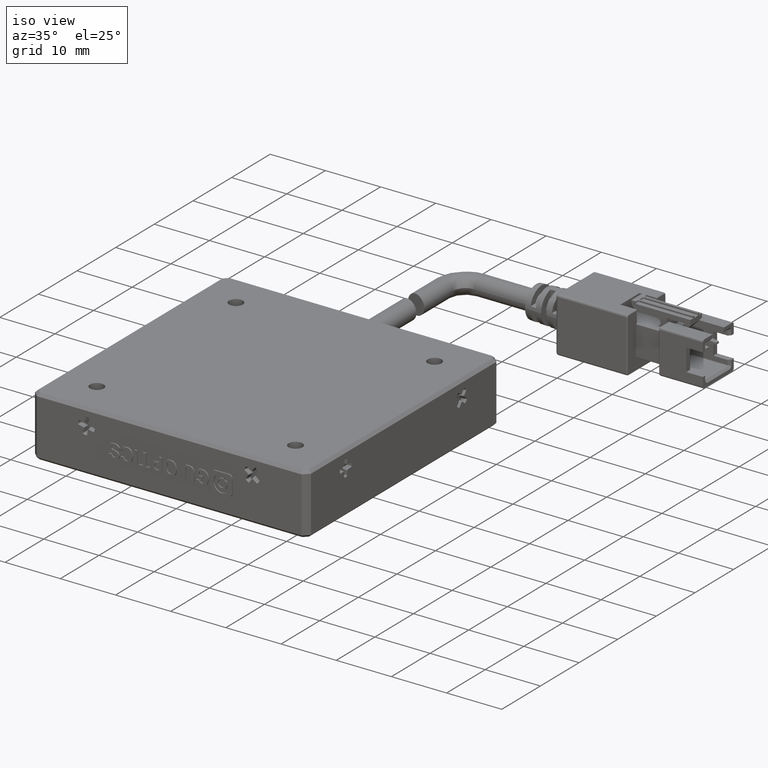
[diagram: clean part render]
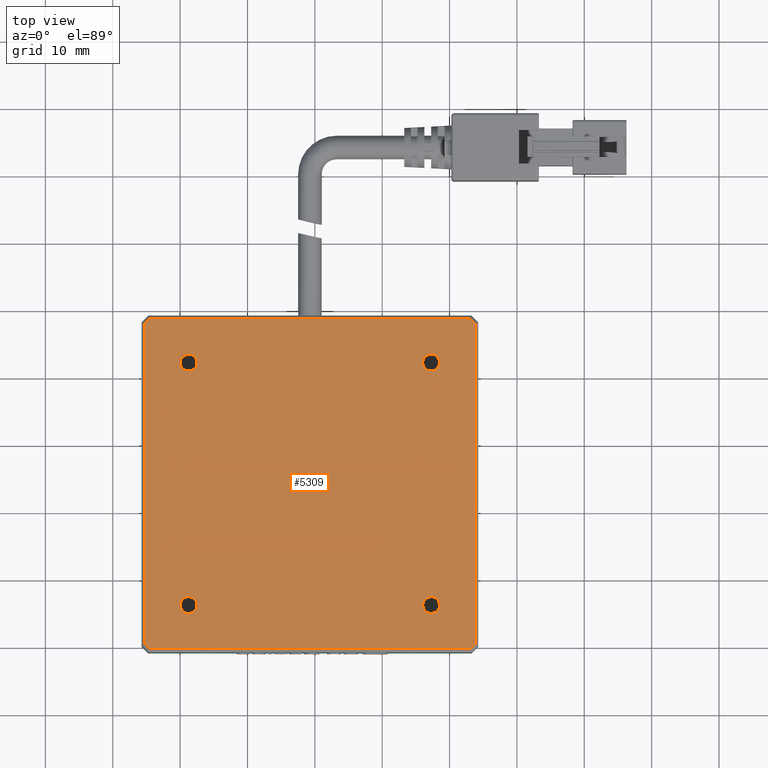
[diagram: tour spotlight — one face highlighted and labeled with its STEP entity id]
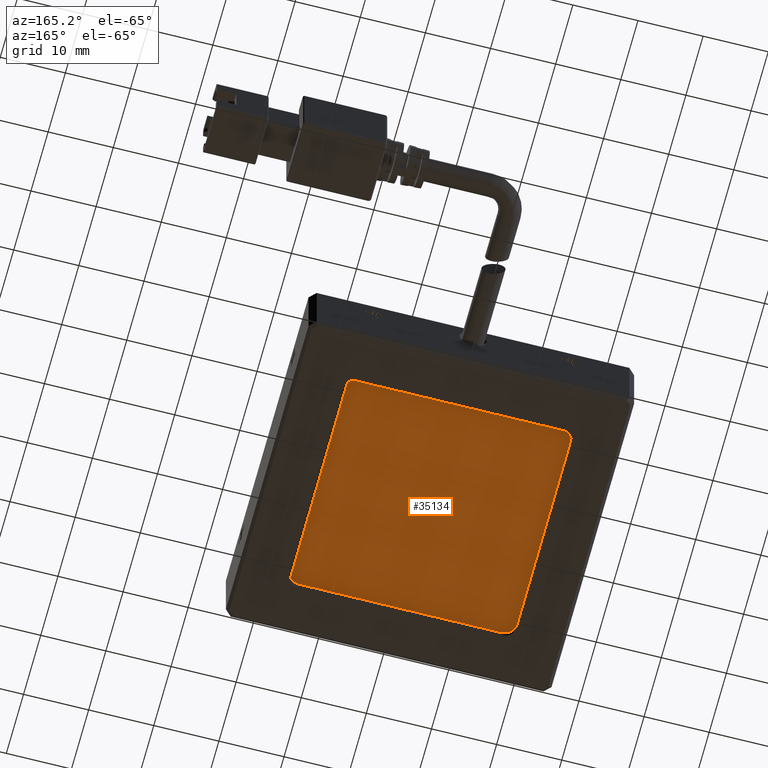
[diagram: tour spotlight — one face highlighted and labeled with its STEP entity id]
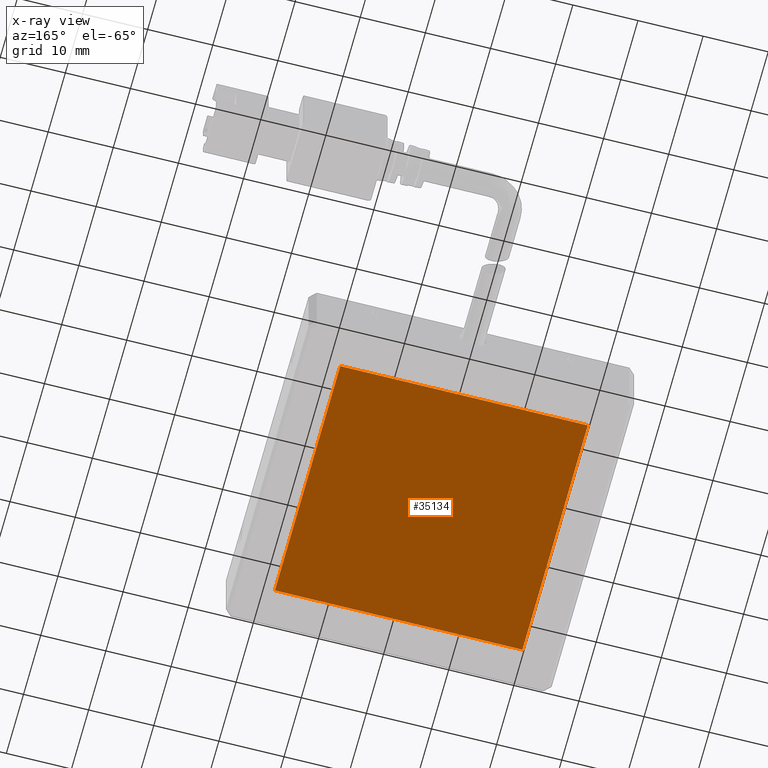
[diagram: x-ray of the same camera — body ghosted, this tour face saturated]
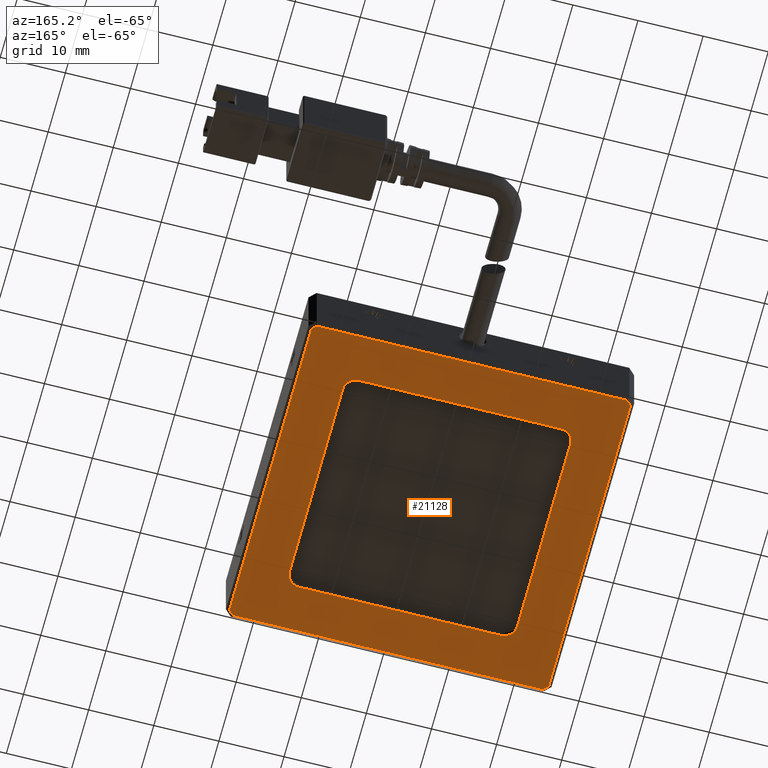
[diagram: tour spotlight — one face highlighted and labeled with its STEP entity id]
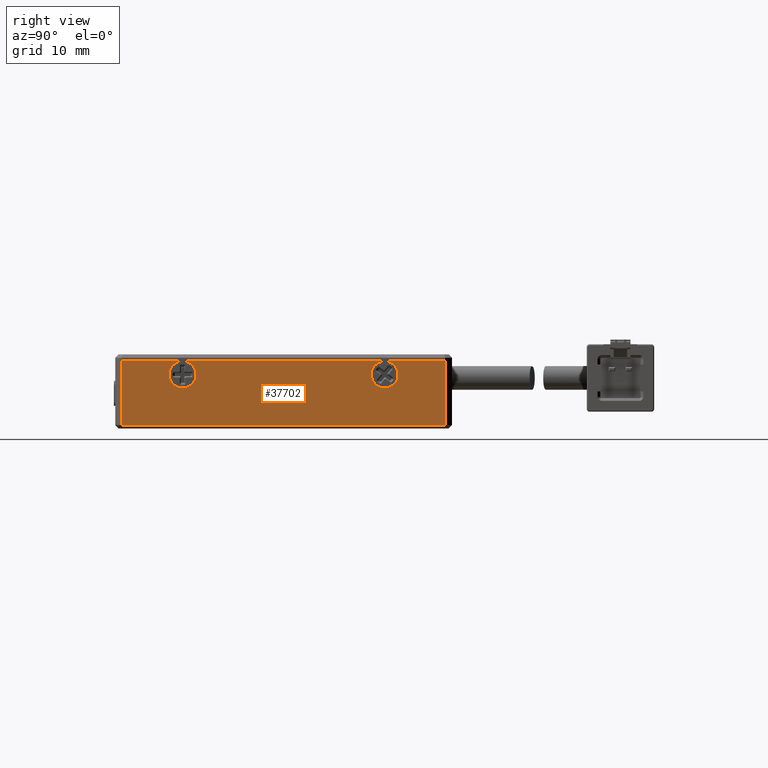
[diagram: tour spotlight — one face highlighted and labeled with its STEP entity id]
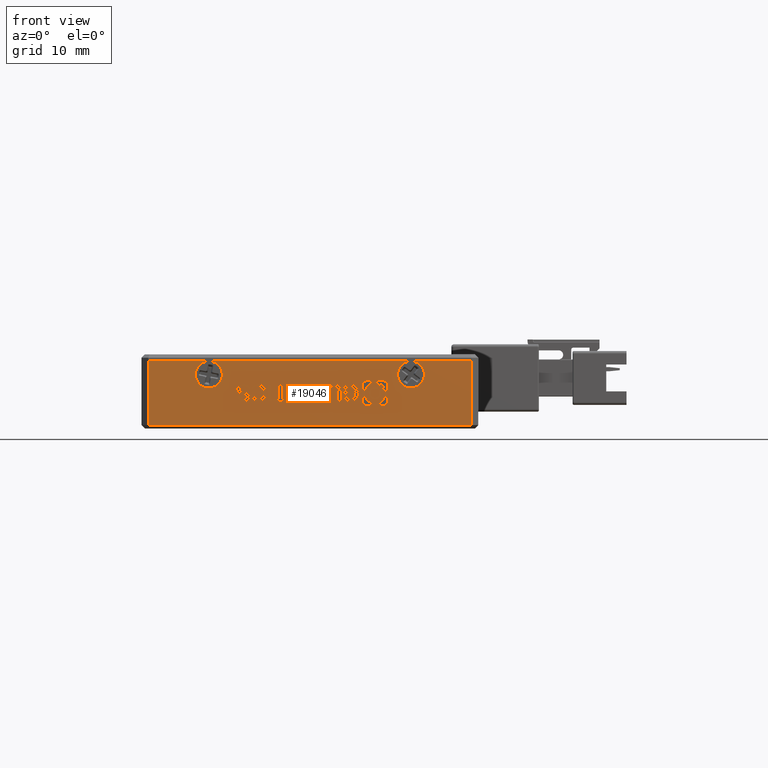
[diagram: tour spotlight — one face highlighted and labeled with its STEP entity id]
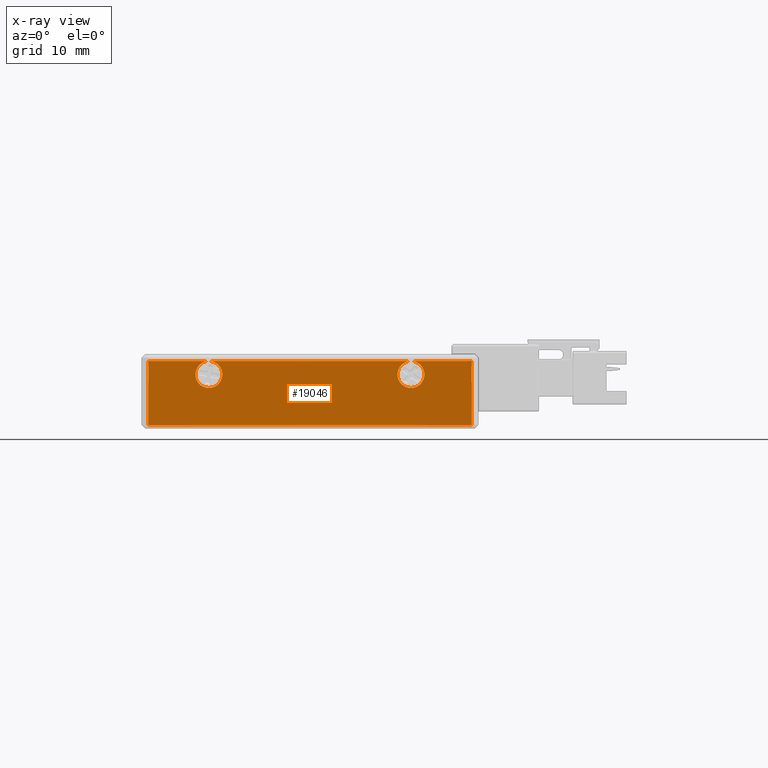
[diagram: x-ray of the same camera — body ghosted, this tour face saturated]
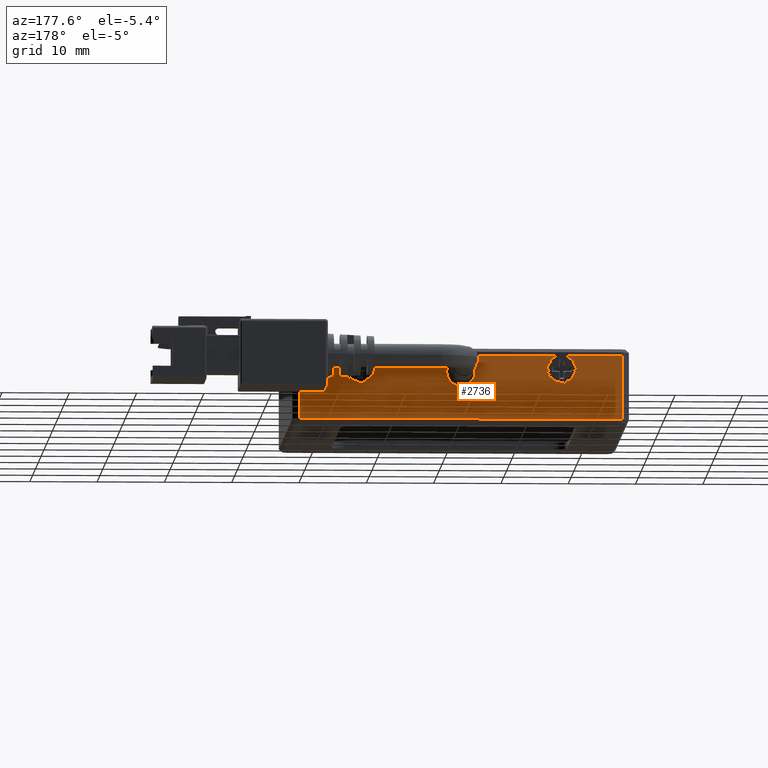
[diagram: tour spotlight — one face highlighted and labeled with its STEP entity id]
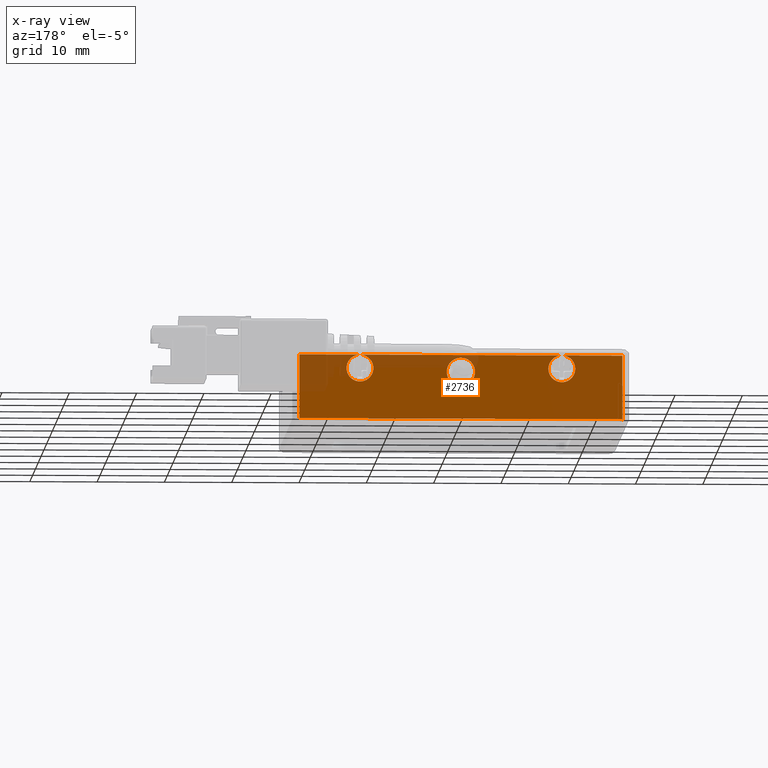
[diagram: x-ray of the same camera — body ghosted, this tour face saturated]
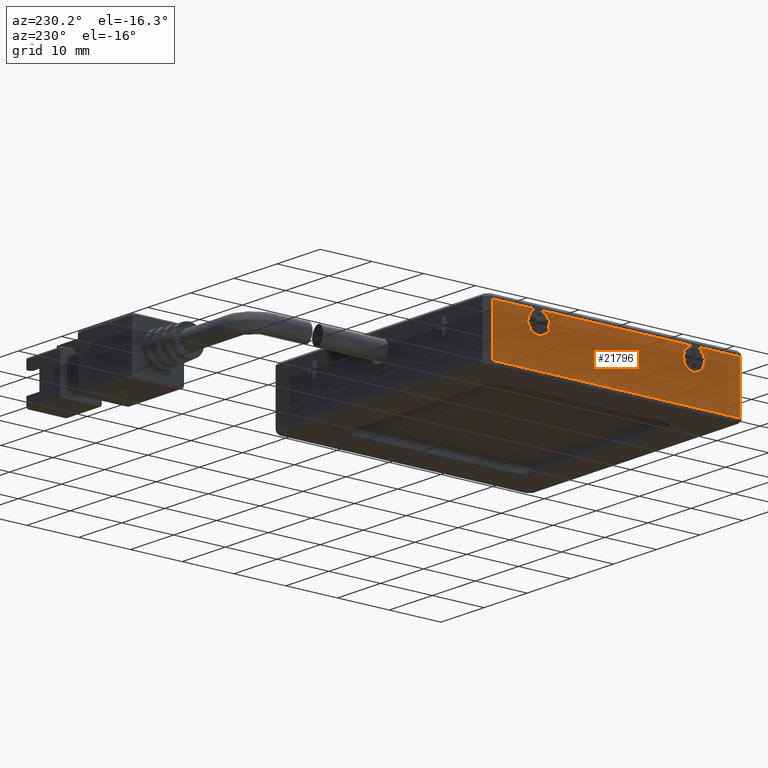
[diagram: tour spotlight — one face highlighted and labeled with its STEP entity id]
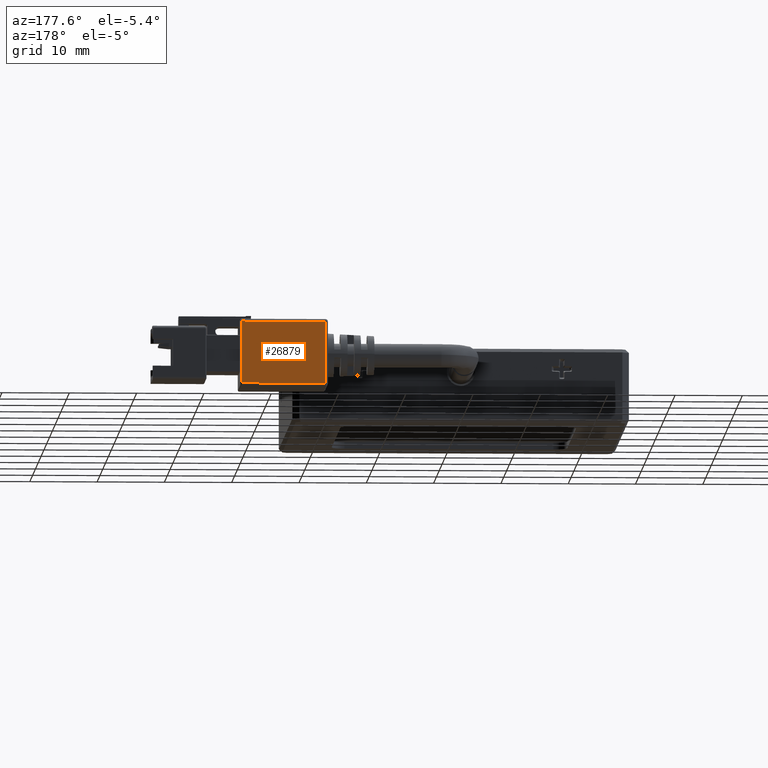
[diagram: tour spotlight — one face highlighted and labeled with its STEP entity id]
A machine part: a face-by-face anatomy tour. The part has 955 B-rep faces; the first image is the clean iso view, then the 8 largest visible faces are spotlighted one at a time (largest first), each with its STEP entity span.

Face 1 — top view, entity #5309. In plain terms, the highlighted planar face has unit normal (0, 0, -1).
Definition (entity closure, byte-faithful):
#67 = EDGE_CURVE ( 'NONE', #25955, #35890, #5223, .T. ) ;
#130 = CIRCLE ( 'NONE', #8364, 1.250000000000001100 ) ;
#987 = PLANE ( 'NONE',  #11034 ) ;
#1202 = CARTESIAN_POINT ( 'NONE',  ( 43.05991853526914100, -10.28886075949365300, 2.250000000000000000 ) ) ;
#1583 = CARTESIAN_POINT ( 'NONE',  ( 2.517025316455711300, -3.788860759493669000, 2.250000000000000900 ) ) ;
#1584 = CARTESIAN_POINT ( 'NONE',  ( 43.76702531645570800, 14.21113924050633600, 2.250000000000000900 ) ) ;
#1961 = CARTESIAN_POINT ( 'NONE',  ( 43.76702531645570800, -9.581753978307098400, 2.250000000000000000 ) ) ;
#2687 = FACE_OUTER_BOUND ( 'NONE', #33868, .T. ) ;
#2696 = VERTEX_POINT ( 'NONE', #9526 ) ;
#2784 = CARTESIAN_POINT ( 'NONE',  ( 43.05991853526914800, 38.71113924050632000, 2.250000000000001800 ) ) ;
#2935 = LINE ( 'NONE', #3791, #10588 ) ;
#3791 = CARTESIAN_POINT ( 'NONE',  ( 19.26702531645571500, -10.28886075949365300, 2.250000000000000900 ) ) ;
#4953 = CARTESIAN_POINT ( 'NONE',  ( 19.26702531645571500, 38.71113924050632000, 2.250000000000000900 ) ) ;
#5038 = ORIENTED_EDGE ( 'NONE', *, *, #19846, .F. ) ;
#5053 = VECTOR ( 'NONE', #7858, 1000.000000000000000 ) ;
#5217 = DIRECTION ( 'NONE',  ( -0.0000000000000000000, -0.0000000000000000000, 1.000000000000000000 ) ) ;
#5223 = LINE ( 'NONE', #18624, #38743 ) ;
#5309 = ADVANCED_FACE ( 'NONE', ( #2687, #10346, #36201, #19020, #27626 ), #987, .F. ) ;
#5335 = VECTOR ( 'NONE', #34485, 1000.000000000000000 ) ;
#5966 = EDGE_LOOP ( 'NONE', ( #27106, #5038 ) ) ;
#6165 = EDGE_CURVE ( 'NONE', #7917, #41685, #42163, .T. ) ;
#6447 = VECTOR ( 'NONE', #21568, 1000.000000000000000 ) ;
#6760 = ORIENTED_EDGE ( 'NONE', *, *, #37213, .F. ) ;
#6822 = CARTESIAN_POINT ( 'NONE',  ( 43.76702531645570800, -9.581753978307098400, 2.250000000000000900 ) ) ;
#7551 = DIRECTION ( 'NONE',  ( -0.0000000000000000000, -0.0000000000000000000, 1.000000000000000000 ) ) ;
#7858 = DIRECTION ( 'NONE',  ( -0.0000000000000000000, -1.000000000000000000, -0.0000000000000000000 ) ) ;
#7917 = VERTEX_POINT ( 'NONE', #17456 ) ;
#8034 = ORIENTED_EDGE ( 'NONE', *, *, #6165, .F. ) ;
#8059 = DIRECTION ( 'NONE',  ( -0.0000000000000000000, -0.0000000000000000000, 1.000000000000000000 ) ) ;
#8364 = AXIS2_PLACEMENT_3D ( 'NONE', #27051, #7551, #30258 ) ;
#8401 = CARTESIAN_POINT ( 'NONE',  ( 37.26702531645571500, -3.788860759493665900, 2.250000000000000900 ) ) ;
#8691 = EDGE_CURVE ( 'NONE', #2696, #10324, #20035, .T. ) ;
#9526 = CARTESIAN_POINT ( 'NONE',  ( 2.517025316455704600, 32.21113924050634100, 2.250000000000000900 ) ) ;
#10018 = VERTEX_POINT ( 'NONE', #29306 ) ;
#10086 = EDGE_LOOP ( 'NONE', ( #19180, #26787 ) ) ;
#10324 = VERTEX_POINT ( 'NONE', #40788 ) ;
#10346 = FACE_BOUND ( 'NONE', #10086, .T. ) ;
#10526 = VECTOR ( 'NONE', #38591, 999.9999999999998900 ) ;
#10588 = VECTOR ( 'NONE', #29793, 1000.000000000000000 ) ;
#10923 = CARTESIAN_POINT ( 'NONE',  ( 1.267025316455710400, -3.788860759493669000, 2.250000000000000900 ) ) ;
#11034 = AXIS2_PLACEMENT_3D ( 'NONE', #36766, #17381, #40050 ) ;
#11174 = EDGE_CURVE ( 'NONE', #25805, #20397, #38850, .T. ) ;
#11667 = DIRECTION ( 'NONE',  ( 1.000000000000000000, 0.0000000000000000000, 0.0000000000000000000 ) ) ;
#11771 = ORIENTED_EDGE ( 'NONE', *, *, #67, .F. ) ;
#13083 = VERTEX_POINT ( 'NONE', #1202 ) ;
#13605 = VERTEX_POINT ( 'NONE', #31789 ) ;
#13774 = DIRECTION ( 'NONE',  ( -0.0000000000000000000, -0.0000000000000000000, 1.000000000000000000 ) ) ;
#14172 = DIRECTION ( 'NONE',  ( 1.000000000000000000, 0.0000000000000000000, 0.0000000000000000000 ) ) ;
#14417 = CARTESIAN_POINT ( 'NONE',  ( 43.76702531645570800, 38.00403245931975200, 2.250000000000001800 ) ) ;
#15000 = EDGE_CURVE ( 'NONE', #17336, #10018, #32851, .T. ) ;
#15028 = CARTESIAN_POINT ( 'NONE',  ( 43.05991853526914800, 38.71113924050632000, 2.250000000000000900 ) ) ;
#15918 = CARTESIAN_POINT ( 'NONE',  ( -4.525867902357726200, -10.28886075949365300, 2.250000000000000900 ) ) ;
#16303 = EDGE_CURVE ( 'NONE', #35890, #25805, #17906, .T. ) ;
#16493 = ORIENTED_EDGE ( 'NONE', *, *, #19390, .F. ) ;
#16674 = CARTESIAN_POINT ( 'NONE',  ( -5.232974683544267900, -9.581753978307105500, 2.250000000000001800 ) ) ;
#16798 = VERTEX_POINT ( 'NONE', #30609 ) ;
#17336 = VERTEX_POINT ( 'NONE', #1583 ) ;
#17381 = DIRECTION ( 'NONE',  ( 0.0000000000000000000, 0.0000000000000000000, -1.000000000000000000 ) ) ;
#17456 = CARTESIAN_POINT ( 'NONE',  ( 36.01702531645571500, -3.788860759493665900, 2.250000000000000900 ) ) ;
#17692 = CIRCLE ( 'NONE', #21364, 1.249999999999997600 ) ;
#17866 = CARTESIAN_POINT ( 'NONE',  ( 1.267025316455706800, 32.21113924050634100, 2.250000000000000900 ) ) ;
#17906 = LINE ( 'NONE', #4953, #41775 ) ;
#17930 = CARTESIAN_POINT ( 'NONE',  ( 38.51702531645572200, -3.788860759493665900, 2.250000000000000900 ) ) ;
#18314 = CARTESIAN_POINT ( 'NONE',  ( -5.232974683544267900, 14.21113924050633600, 2.250000000000000900 ) ) ;
#18624 = CARTESIAN_POINT ( 'NONE',  ( -5.232974683544267900, 38.00403245931977400, 2.250000000000000900 ) ) ;
#18657 = AXIS2_PLACEMENT_3D ( 'NONE', #24710, #5217, #27953 ) ;
#18794 = CARTESIAN_POINT ( 'NONE',  ( 1.267025316455706800, 32.21113924050634100, 2.250000000000000900 ) ) ;
#19020 = FACE_BOUND ( 'NONE', #26362, .T. ) ;
#19180 = ORIENTED_EDGE ( 'NONE', *, *, #15000, .F. ) ;
#19390 = EDGE_CURVE ( 'NONE', #20397, #25645, #39568, .T. ) ;
#19815 = ORIENTED_EDGE ( 'NONE', *, *, #32620, .F. ) ;
#19846 = EDGE_CURVE ( 'NONE', #10324, #2696, #17692, .T. ) ;
#19899 = EDGE_CURVE ( 'NONE', #16798, #20720, #35410, .T. ) ;
#20035 = CIRCLE ( 'NONE', #21728, 1.249999999999997600 ) ;
#20149 = EDGE_CURVE ( 'NONE', #10018, #17336, #30256, .T. ) ;
#20397 = VERTEX_POINT ( 'NONE', #14417 ) ;
#20708 = EDGE_CURVE ( 'NONE', #36570, #13605, #130, .T. ) ;
#20720 = VERTEX_POINT ( 'NONE', #16674 ) ;
#21124 = DIRECTION ( 'NONE',  ( 1.000000000000000000, 0.0000000000000000000, 0.0000000000000000000 ) ) ;
#21260 = EDGE_CURVE ( 'NONE', #13605, #36570, #33087, .T. ) ;
#21296 = DIRECTION ( 'NONE',  ( 1.000000000000000000, -0.0000000000000000000, 0.0000000000000000000 ) ) ;
#21364 = AXIS2_PLACEMENT_3D ( 'NONE', #18794, #41482, #22035 ) ;
#21568 = DIRECTION ( 'NONE',  ( 0.0000000000000000000, 1.000000000000000000, 0.0000000000000000000 ) ) ;
#21728 = AXIS2_PLACEMENT_3D ( 'NONE', #17866, #40552, #21124 ) ;
#21985 = ORIENTED_EDGE ( 'NONE', *, *, #36911, .F. ) ;
#22035 = DIRECTION ( 'NONE',  ( 1.000000000000000000, 0.0000000000000000000, 0.0000000000000000000 ) ) ;
#22448 = ORIENTED_EDGE ( 'NONE', *, *, #16303, .F. ) ;
#22958 = CIRCLE ( 'NONE', #18657, 1.250000000000001100 ) ;
#23287 = VECTOR ( 'NONE', #36051, 1000.000000000000000 ) ;
#23343 = AXIS2_PLACEMENT_3D ( 'NONE', #33209, #13774, #36440 ) ;
#23514 = EDGE_LOOP ( 'NONE', ( #40480, #8034 ) ) ;
#24218 = ORIENTED_EDGE ( 'NONE', *, *, #11174, .F. ) ;
#24710 = CARTESIAN_POINT ( 'NONE',  ( 37.26702531645571500, -3.788860759493665900, 2.250000000000000900 ) ) ;
#24804 = LINE ( 'NONE', #18314, #6447 ) ;
#25645 = VERTEX_POINT ( 'NONE', #1961 ) ;
#25805 = VERTEX_POINT ( 'NONE', #2784 ) ;
#25811 = AXIS2_PLACEMENT_3D ( 'NONE', #8401, #31095, #11667 ) ;
#25955 = VERTEX_POINT ( 'NONE', #29604 ) ;
#26362 = EDGE_LOOP ( 'NONE', ( #36374, #31015 ) ) ;
#26787 = ORIENTED_EDGE ( 'NONE', *, *, #20149, .F. ) ;
#27051 = CARTESIAN_POINT ( 'NONE',  ( 37.26702531645571500, 32.21113924050634100, 2.250000000000000900 ) ) ;
#27079 = AXIS2_PLACEMENT_3D ( 'NONE', #27518, #8059, #30751 ) ;
#27106 = ORIENTED_EDGE ( 'NONE', *, *, #8691, .F. ) ;
#27518 = CARTESIAN_POINT ( 'NONE',  ( 1.267025316455710400, -3.788860759493669000, 2.250000000000000900 ) ) ;
#27626 = FACE_BOUND ( 'NONE', #5966, .T. ) ;
#27953 = DIRECTION ( 'NONE',  ( 1.000000000000000000, 0.0000000000000000000, 0.0000000000000000000 ) ) ;
#29306 = CARTESIAN_POINT ( 'NONE',  ( 0.01702531645570923300, -3.788860759493669000, 2.250000000000000900 ) ) ;
#29604 = CARTESIAN_POINT ( 'NONE',  ( -5.232974683544267900, 38.00403245931977400, 2.250000000000000000 ) ) ;
#29793 = DIRECTION ( 'NONE',  ( -1.000000000000000000, 0.0000000000000000000, -0.0000000000000000000 ) ) ;
#30256 = CIRCLE ( 'NONE', #41520, 1.250000000000001100 ) ;
#30258 = DIRECTION ( 'NONE',  ( 1.000000000000000000, 0.0000000000000000000, 0.0000000000000000000 ) ) ;
#30525 = ORIENTED_EDGE ( 'NONE', *, *, #19899, .F. ) ;
#30609 = CARTESIAN_POINT ( 'NONE',  ( -4.525867902357729700, -10.28886075949365000, 2.250000000000000900 ) ) ;
#30751 = DIRECTION ( 'NONE',  ( 1.000000000000000000, 0.0000000000000000000, 0.0000000000000000000 ) ) ;
#31015 = ORIENTED_EDGE ( 'NONE', *, *, #20708, .F. ) ;
#31095 = DIRECTION ( 'NONE',  ( -0.0000000000000000000, -0.0000000000000000000, 1.000000000000000000 ) ) ;
#31619 = EDGE_CURVE ( 'NONE', #41685, #7917, #22958, .T. ) ;
#31789 = CARTESIAN_POINT ( 'NONE',  ( 38.51702531645572200, 32.21113924050634100, 2.250000000000000900 ) ) ;
#31902 = LINE ( 'NONE', #6822, #23287 ) ;
#32620 = EDGE_CURVE ( 'NONE', #25645, #13083, #31902, .T. ) ;
#32851 = CIRCLE ( 'NONE', #27079, 1.250000000000001100 ) ;
#33087 = CIRCLE ( 'NONE', #23343, 1.250000000000001100 ) ;
#33209 = CARTESIAN_POINT ( 'NONE',  ( 37.26702531645571500, 32.21113924050634100, 2.250000000000000900 ) ) ;
#33617 = DIRECTION ( 'NONE',  ( -0.0000000000000000000, -0.0000000000000000000, 1.000000000000000000 ) ) ;
#33868 = EDGE_LOOP ( 'NONE', ( #30525, #21985, #19815, #16493, #24218, #22448, #11771, #6760 ) ) ;
#34485 = DIRECTION ( 'NONE',  ( 0.7071067811865441300, -0.7071067811865510100, 0.0000000000000000000 ) ) ;
#35410 = LINE ( 'NONE', #15918, #10526 ) ;
#35890 = VERTEX_POINT ( 'NONE', #39231 ) ;
#36051 = DIRECTION ( 'NONE',  ( -0.7071067811865510100, -0.7071067811865441300, 0.0000000000000000000 ) ) ;
#36201 = FACE_BOUND ( 'NONE', #23514, .T. ) ;
#36374 = ORIENTED_EDGE ( 'NONE', *, *, #21260, .F. ) ;
#36440 = DIRECTION ( 'NONE',  ( 1.000000000000000000, 0.0000000000000000000, 0.0000000000000000000 ) ) ;
#36570 = VERTEX_POINT ( 'NONE', #36923 ) ;
#36766 = CARTESIAN_POINT ( 'NONE',  ( 19.26702531645571500, 14.21113924050633600, 2.250000000000000900 ) ) ;
#36911 = EDGE_CURVE ( 'NONE', #13083, #16798, #2935, .T. ) ;
#36923 = CARTESIAN_POINT ( 'NONE',  ( 36.01702531645571500, 32.21113924050634100, 2.250000000000000900 ) ) ;
#37213 = EDGE_CURVE ( 'NONE', #20720, #25955, #24804, .T. ) ;
#38017 = DIRECTION ( 'NONE',  ( 0.7071067811865510100, 0.7071067811865441300, 0.0000000000000000000 ) ) ;
#38591 = DIRECTION ( 'NONE',  ( -0.7071067811865441300, 0.7071067811865510100, 0.0000000000000000000 ) ) ;
#38743 = VECTOR ( 'NONE', #38017, 999.9999999999998900 ) ;
#38850 = LINE ( 'NONE', #15028, #5335 ) ;
#39231 = CARTESIAN_POINT ( 'NONE',  ( -4.525867902357719100, 38.71113924050632000, 2.250000000000000000 ) ) ;
#39568 = LINE ( 'NONE', #1584, #5053 ) ;
#40050 = DIRECTION ( 'NONE',  ( -1.000000000000000000, 0.0000000000000000000, -0.0000000000000000000 ) ) ;
#40480 = ORIENTED_EDGE ( 'NONE', *, *, #31619, .F. ) ;
#40552 = DIRECTION ( 'NONE',  ( -0.0000000000000000000, -0.0000000000000000000, 1.000000000000000000 ) ) ;
#40788 = CARTESIAN_POINT ( 'NONE',  ( 0.01702531645570923300, 32.21113924050634100, 2.250000000000000900 ) ) ;
#41482 = DIRECTION ( 'NONE',  ( -0.0000000000000000000, -0.0000000000000000000, 1.000000000000000000 ) ) ;
#41520 = AXIS2_PLACEMENT_3D ( 'NONE', #10923, #33617, #14172 ) ;
#41685 = VERTEX_POINT ( 'NONE', #17930 ) ;
#41775 = VECTOR ( 'NONE', #21296, 1000.000000000000000 ) ;
#42163 = CIRCLE ( 'NONE', #25811, 1.250000000000001100 ) ;

Face 2 — auxiliary view, entity #35134. An x-ray twin of the same camera follows (body ghosted, this face saturated) — the face is partly hidden behind the body. In plain terms, the highlighted planar face has unit normal (0, 0, -1).
Definition (entity closure, byte-faithful):
#136 = VECTOR ( 'NONE', #25671, 1000.000000000000000 ) ;
#1225 = VERTEX_POINT ( 'NONE', #17167 ) ;
#1544 = CARTESIAN_POINT ( 'NONE',  ( 37.93203739059163800, -5.288860759493659600, -7.549999999999995400 ) ) ;
#3584 = ORIENTED_EDGE ( 'NONE', *, *, #14471, .T. ) ;
#4641 = AXIS2_PLACEMENT_3D ( 'NONE', #15788, #38460, #19081 ) ;
#6270 = FACE_OUTER_BOUND ( 'NONE', #13284, .T. ) ;
#9135 = PLANE ( 'NONE',  #4641 ) ;
#10166 = ORIENTED_EDGE ( 'NONE', *, *, #25166, .T. ) ;
#12578 = EDGE_CURVE ( 'NONE', #21612, #22864, #15311, .T. ) ;
#13284 = EDGE_LOOP ( 'NONE', ( #34928, #3584, #14912, #10166 ) ) ;
#13470 = VECTOR ( 'NONE', #21027, 1000.000000000000000 ) ;
#13888 = DIRECTION ( 'NONE',  ( -0.0000000000000000000, 1.000000000000000000, 0.0000000000000000000 ) ) ;
#14044 = CARTESIAN_POINT ( 'NONE',  ( 37.93203739059163800, -5.288860759493659600, -7.549999999999995400 ) ) ;
#14471 = EDGE_CURVE ( 'NONE', #19151, #21612, #40370, .T. ) ;
#14912 = ORIENTED_EDGE ( 'NONE', *, *, #12578, .T. ) ;
#15311 = LINE ( 'NONE', #1544, #32543 ) ;
#15788 = CARTESIAN_POINT ( 'NONE',  ( 18.93203739059163800, 13.71113924050633900, -7.549999999999995400 ) ) ;
#17167 = CARTESIAN_POINT ( 'NONE',  ( -0.06796260940836185100, -5.288860759493659600, -7.549999999999995400 ) ) ;
#17785 = CARTESIAN_POINT ( 'NONE',  ( -0.06796260940836185100, 32.71113924050633400, -7.549999999999995400 ) ) ;
#17904 = VECTOR ( 'NONE', #13888, 1000.000000000000000 ) ;
#19081 = DIRECTION ( 'NONE',  ( -1.000000000000000000, 0.0000000000000000000, -0.0000000000000000000 ) ) ;
#19151 = VERTEX_POINT ( 'NONE', #23210 ) ;
#21027 = DIRECTION ( 'NONE',  ( 1.000000000000000000, 0.0000000000000000000, 0.0000000000000000000 ) ) ;
#21612 = VERTEX_POINT ( 'NONE', #25575 ) ;
#22864 = VERTEX_POINT ( 'NONE', #14044 ) ;
#23210 = CARTESIAN_POINT ( 'NONE',  ( -0.06796260940836185100, 32.71113924050633400, -7.549999999999995400 ) ) ;
#24316 = DIRECTION ( 'NONE',  ( -0.0000000000000000000, -1.000000000000000000, 0.0000000000000000000 ) ) ;
#25166 = EDGE_CURVE ( 'NONE', #22864, #1225, #26136, .T. ) ;
#25575 = CARTESIAN_POINT ( 'NONE',  ( 37.93203739059163800, 32.71113924050633400, -7.549999999999995400 ) ) ;
#25671 = DIRECTION ( 'NONE',  ( -1.000000000000000000, -0.0000000000000000000, 0.0000000000000000000 ) ) ;
#26136 = LINE ( 'NONE', #28897, #136 ) ;
#28897 = CARTESIAN_POINT ( 'NONE',  ( -0.06796260940836185100, -5.288860759493659600, -7.549999999999995400 ) ) ;
#30054 = CARTESIAN_POINT ( 'NONE',  ( -0.06796260940836185100, -5.288860759493659600, -7.549999999999995400 ) ) ;
#32543 = VECTOR ( 'NONE', #24316, 1000.000000000000000 ) ;
#34158 = LINE ( 'NONE', #30054, #17904 ) ;
#34928 = ORIENTED_EDGE ( 'NONE', *, *, #42170, .T. ) ;
#35134 = ADVANCED_FACE ( 'NONE', ( #6270 ), #9135, .T. ) ;
#38460 = DIRECTION ( 'NONE',  ( 0.0000000000000000000, 0.0000000000000000000, -1.000000000000000000 ) ) ;
#40370 = LINE ( 'NONE', #17785, #13470 ) ;
#42170 = EDGE_CURVE ( 'NONE', #1225, #19151, #34158, .T. ) ;

Face 3 — auxiliary view, entity #21128. In plain terms, the highlighted planar face has unit normal (0, 0, -1).
Definition (entity closure, byte-faithful):
#65 = CARTESIAN_POINT ( 'NONE',  ( 36.76702531645571500, 14.21113924050632300, -8.750000000000000000 ) ) ;
#103 = DIRECTION ( 'NONE',  ( 0.0000000000000000000, 0.0000000000000000000, -1.000000000000000000 ) ) ;
#583 = LINE ( 'NONE', #39538, #9303 ) ;
#805 = CIRCLE ( 'NONE', #15679, 2.000000000000000000 ) ;
#1403 = CARTESIAN_POINT ( 'NONE',  ( -4.525867902357719100, 38.71113924050632700, -8.750000000000000000 ) ) ;
#1538 = CARTESIAN_POINT ( 'NONE',  ( 3.767025316455714400, -1.288860759493677400, -8.750000000000000000 ) ) ;
#1921 = EDGE_CURVE ( 'NONE', #35737, #40384, #36796, .T. ) ;
#2501 = DIRECTION ( 'NONE',  ( -1.000000000000000000, 0.0000000000000000000, 0.0000000000000000000 ) ) ;
#2958 = ORIENTED_EDGE ( 'NONE', *, *, #15251, .T. ) ;
#3246 = PLANE ( 'NONE',  #5883 ) ;
#3615 = VECTOR ( 'NONE', #41151, 1000.000000000000000 ) ;
#3744 = CARTESIAN_POINT ( 'NONE',  ( 34.76702531645571500, 31.71113924050632300, -8.750000000000000000 ) ) ;
#3944 = ORIENTED_EDGE ( 'NONE', *, *, #22710, .T. ) ;
#4731 = CIRCLE ( 'NONE', #25873, 2.000000000000000000 ) ;
#4825 = DIRECTION ( 'NONE',  ( -1.000000000000000000, 0.0000000000000000000, 0.0000000000000000000 ) ) ;
#4866 = VECTOR ( 'NONE', #38324, 999.9999999999998900 ) ;
#5012 = VECTOR ( 'NONE', #35249, 1000.000000000000000 ) ;
#5377 = ORIENTED_EDGE ( 'NONE', *, *, #35876, .T. ) ;
#5519 = VERTEX_POINT ( 'NONE', #34939 ) ;
#5608 = CARTESIAN_POINT ( 'NONE',  ( 43.05991853526919800, 38.71113924050632700, -8.749999999999998200 ) ) ;
#5650 = LINE ( 'NONE', #21561, #3615 ) ;
#5883 = AXIS2_PLACEMENT_3D ( 'NONE', #19618, #103, #22875 ) ;
#6075 = VERTEX_POINT ( 'NONE', #1403 ) ;
#6623 = DIRECTION ( 'NONE',  ( 0.0000000000000000000, 1.000000000000000000, 0.0000000000000000000 ) ) ;
#6722 = CARTESIAN_POINT ( 'NONE',  ( 43.76702531645572200, -9.581753978307132200, -8.750000000000000000 ) ) ;
#7460 = CARTESIAN_POINT ( 'NONE',  ( 43.76702531645572200, 38.00403245931980900, -8.750000000000003600 ) ) ;
#7935 = VERTEX_POINT ( 'NONE', #11195 ) ;
#8143 = EDGE_CURVE ( 'NONE', #24611, #14485, #805, .T. ) ;
#8447 = CARTESIAN_POINT ( 'NONE',  ( 19.26702531645572200, 38.71113924050632700, -8.750000000000000000 ) ) ;
#9290 = CARTESIAN_POINT ( 'NONE',  ( 43.76702531645572200, -9.581753978307132200, -8.750000000000000000 ) ) ;
#9303 = VECTOR ( 'NONE', #16890, 1000.000000000000000 ) ;
#9442 = EDGE_LOOP ( 'NONE', ( #39742, #25981, #11873, #3944, #10578, #5377, #17801, #2958 ) ) ;
#9466 = EDGE_CURVE ( 'NONE', #14485, #5519, #583, .T. ) ;
#10557 = ORIENTED_EDGE ( 'NONE', *, *, #9466, .T. ) ;
#10578 = ORIENTED_EDGE ( 'NONE', *, *, #15591, .T. ) ;
#10777 = CARTESIAN_POINT ( 'NONE',  ( -4.525867902357740400, -10.28886075949366900, -8.750000000000000000 ) ) ;
#10803 = AXIS2_PLACEMENT_3D ( 'NONE', #41436, #21986, #2501 ) ;
#10842 = DIRECTION ( 'NONE',  ( -0.0000000000000000000, -1.000000000000000000, -0.0000000000000000000 ) ) ;
#11133 = CARTESIAN_POINT ( 'NONE',  ( 36.76702531645571500, -1.288860759493677400, -8.750000000000000000 ) ) ;
#11195 = CARTESIAN_POINT ( 'NONE',  ( -5.232974683544277600, 38.00403245931980200, -8.749999999999998200 ) ) ;
#11287 = VERTEX_POINT ( 'NONE', #38123 ) ;
#11288 = VECTOR ( 'NONE', #19871, 1000.000000000000000 ) ;
#11492 = VECTOR ( 'NONE', #38794, 999.9999999999998900 ) ;
#11873 = ORIENTED_EDGE ( 'NONE', *, *, #12069, .T. ) ;
#11965 = VECTOR ( 'NONE', #22319, 1000.000000000000000 ) ;
#12069 = EDGE_CURVE ( 'NONE', #6075, #40569, #37179, .T. ) ;
#12104 = ORIENTED_EDGE ( 'NONE', *, *, #35608, .T. ) ;
#12195 = VERTEX_POINT ( 'NONE', #37952 ) ;
#12310 = LINE ( 'NONE', #26433, #11288 ) ;
#13416 = ORIENTED_EDGE ( 'NONE', *, *, #38655, .T. ) ;
#13970 = CARTESIAN_POINT ( 'NONE',  ( 34.76702531645571500, 29.71113924050632700, -8.750000000000000000 ) ) ;
#13977 = DIRECTION ( 'NONE',  ( -0.0000000000000000000, -0.0000000000000000000, 1.000000000000000000 ) ) ;
#14086 = CIRCLE ( 'NONE', #10803, 2.000000000000001800 ) ;
#14485 = VERTEX_POINT ( 'NONE', #24310 ) ;
#14978 = DIRECTION ( 'NONE',  ( 1.000000000000000000, -0.0000000000000000000, 0.0000000000000000000 ) ) ;
#15251 = EDGE_CURVE ( 'NONE', #40384, #12195, #21151, .T. ) ;
#15591 = EDGE_CURVE ( 'NONE', #38785, #15894, #34804, .T. ) ;
#15632 = ORIENTED_EDGE ( 'NONE', *, *, #40578, .T. ) ;
#15679 = AXIS2_PLACEMENT_3D ( 'NONE', #1538, #24311, #4825 ) ;
#15894 = VERTEX_POINT ( 'NONE', #9290 ) ;
#16419 = DIRECTION ( 'NONE',  ( -0.7071067811865510100, -0.7071067811865441300, 0.0000000000000000000 ) ) ;
#16890 = DIRECTION ( 'NONE',  ( 1.000000000000000000, -0.0000000000000000000, 0.0000000000000000000 ) ) ;
#17265 = DIRECTION ( 'NONE',  ( -1.000000000000000000, 0.0000000000000000000, 0.0000000000000000000 ) ) ;
#17313 = VECTOR ( 'NONE', #23804, 1000.000000000000000 ) ;
#17400 = FACE_BOUND ( 'NONE', #41408, .T. ) ;
#17720 = CARTESIAN_POINT ( 'NONE',  ( 3.767025316455714400, 31.71113924050632300, -8.750000000000000000 ) ) ;
#17763 = LINE ( 'NONE', #65, #34007 ) ;
#17801 = ORIENTED_EDGE ( 'NONE', *, *, #1921, .T. ) ;
#18941 = CARTESIAN_POINT ( 'NONE',  ( 43.05991853526917600, 38.71113924050632700, -8.750000000000000000 ) ) ;
#19540 = EDGE_CURVE ( 'NONE', #12195, #7935, #38533, .T. ) ;
#19618 = CARTESIAN_POINT ( 'NONE',  ( 19.26702531645572200, 14.21113924050632300, -8.750000000000000000 ) ) ;
#19871 = DIRECTION ( 'NONE',  ( -0.0000000000000000000, -1.000000000000000000, -0.0000000000000000000 ) ) ;
#20327 = ORIENTED_EDGE ( 'NONE', *, *, #23819, .T. ) ;
#21128 = ADVANCED_FACE ( 'NONE', ( #17400, #33628 ), #3246, .T. ) ;
#21151 = LINE ( 'NONE', #25825, #11492 ) ;
#21561 = CARTESIAN_POINT ( 'NONE',  ( 19.26702531645572200, 31.71113924050632300, -8.750000000000000000 ) ) ;
#21622 = AXIS2_PLACEMENT_3D ( 'NONE', #13970, #36642, #17265 ) ;
#21986 = DIRECTION ( 'NONE',  ( -0.0000000000000000000, -0.0000000000000000000, 1.000000000000000000 ) ) ;
#22319 = DIRECTION ( 'NONE',  ( -1.000000000000000000, 0.0000000000000000000, -0.0000000000000000000 ) ) ;
#22329 = CIRCLE ( 'NONE', #21622, 2.000000000000001800 ) ;
#22710 = EDGE_CURVE ( 'NONE', #40569, #38785, #38383, .T. ) ;
#22875 = DIRECTION ( 'NONE',  ( -1.000000000000000000, 0.0000000000000000000, -0.0000000000000000000 ) ) ;
#23183 = VERTEX_POINT ( 'NONE', #25712 ) ;
#23302 = VERTEX_POINT ( 'NONE', #3744 ) ;
#23462 = VERTEX_POINT ( 'NONE', #17720 ) ;
#23771 = CARTESIAN_POINT ( 'NONE',  ( 43.76702531645572200, 14.21113924050632300, -8.750000000000000000 ) ) ;
#23804 = DIRECTION ( 'NONE',  ( 0.7071067811865526800, 0.7071067811865423500, 0.0000000000000000000 ) ) ;
#23819 = EDGE_CURVE ( 'NONE', #11287, #23302, #22329, .T. ) ;
#24310 = CARTESIAN_POINT ( 'NONE',  ( 3.767025316455714400, -3.288860759493677400, -8.750000000000000000 ) ) ;
#24311 = DIRECTION ( 'NONE',  ( -0.0000000000000000000, -0.0000000000000000000, 1.000000000000000000 ) ) ;
#24454 = VECTOR ( 'NONE', #16419, 999.9999999999998900 ) ;
#24611 = VERTEX_POINT ( 'NONE', #25579 ) ;
#25420 = CARTESIAN_POINT ( 'NONE',  ( 43.05991853526920500, -10.28886075949366600, -8.750000000000003600 ) ) ;
#25579 = CARTESIAN_POINT ( 'NONE',  ( 1.767025316455714400, -1.288860759493677400, -8.750000000000000000 ) ) ;
#25712 = CARTESIAN_POINT ( 'NONE',  ( 1.767025316455714400, 29.71113924050632300, -8.750000000000000000 ) ) ;
#25825 = CARTESIAN_POINT ( 'NONE',  ( -4.525867902357740400, -10.28886075949366900, -8.750000000000000000 ) ) ;
#25873 = AXIS2_PLACEMENT_3D ( 'NONE', #33426, #13977, #36652 ) ;
#25978 = LINE ( 'NONE', #26939, #17313 ) ;
#25981 = ORIENTED_EDGE ( 'NONE', *, *, #32058, .T. ) ;
#26201 = VECTOR ( 'NONE', #10842, 1000.000000000000000 ) ;
#26433 = CARTESIAN_POINT ( 'NONE',  ( 1.767025316455714400, 14.21113924050632300, -8.750000000000000000 ) ) ;
#26939 = CARTESIAN_POINT ( 'NONE',  ( -5.232974683544277600, 38.00403245931978100, -8.750000000000000000 ) ) ;
#28563 = VECTOR ( 'NONE', #14978, 1000.000000000000000 ) ;
#29782 = ORIENTED_EDGE ( 'NONE', *, *, #42107, .T. ) ;
#31964 = CARTESIAN_POINT ( 'NONE',  ( -5.232974683544277600, 14.21113924050632300, -8.750000000000000000 ) ) ;
#32058 = EDGE_CURVE ( 'NONE', #7935, #6075, #25978, .T. ) ;
#32574 = ORIENTED_EDGE ( 'NONE', *, *, #33802, .T. ) ;
#33043 = LINE ( 'NONE', #6722, #24454 ) ;
#33426 = CARTESIAN_POINT ( 'NONE',  ( 3.767025316455714400, 29.71113924050632300, -8.750000000000000000 ) ) ;
#33628 = FACE_OUTER_BOUND ( 'NONE', #9442, .T. ) ;
#33802 = EDGE_CURVE ( 'NONE', #23462, #23183, #4731, .T. ) ;
#34007 = VECTOR ( 'NONE', #6623, 1000.000000000000000 ) ;
#34804 = LINE ( 'NONE', #23771, #26201 ) ;
#34939 = CARTESIAN_POINT ( 'NONE',  ( 34.76702531645571500, -3.288860759493677400, -8.750000000000000000 ) ) ;
#35249 = DIRECTION ( 'NONE',  ( 0.0000000000000000000, 1.000000000000000000, 0.0000000000000000000 ) ) ;
#35608 = EDGE_CURVE ( 'NONE', #23302, #23462, #5650, .T. ) ;
#35737 = VERTEX_POINT ( 'NONE', #25420 ) ;
#35876 = EDGE_CURVE ( 'NONE', #15894, #35737, #33043, .T. ) ;
#36642 = DIRECTION ( 'NONE',  ( -0.0000000000000000000, -0.0000000000000000000, 1.000000000000000000 ) ) ;
#36652 = DIRECTION ( 'NONE',  ( -1.000000000000000000, 0.0000000000000000000, 0.0000000000000000000 ) ) ;
#36796 = LINE ( 'NONE', #41763, #11965 ) ;
#37179 = LINE ( 'NONE', #8447, #28563 ) ;
#37952 = CARTESIAN_POINT ( 'NONE',  ( -5.232974683544277600, -9.581753978307125100, -8.750000000000000000 ) ) ;
#38123 = CARTESIAN_POINT ( 'NONE',  ( 36.76702531645571500, 29.71113924050632700, -8.750000000000000000 ) ) ;
#38324 = DIRECTION ( 'NONE',  ( 0.7071067811865441300, -0.7071067811865510100, 0.0000000000000000000 ) ) ;
#38383 = LINE ( 'NONE', #18941, #4866 ) ;
#38533 = LINE ( 'NONE', #31964, #5012 ) ;
#38655 = EDGE_CURVE ( 'NONE', #39490, #11287, #17763, .T. ) ;
#38785 = VERTEX_POINT ( 'NONE', #7460 ) ;
#38794 = DIRECTION ( 'NONE',  ( -0.7071067811865441300, 0.7071067811865510100, 0.0000000000000000000 ) ) ;
#39490 = VERTEX_POINT ( 'NONE', #11133 ) ;
#39538 = CARTESIAN_POINT ( 'NONE',  ( 19.26702531645572200, -3.288860759493677400, -8.750000000000000000 ) ) ;
#39742 = ORIENTED_EDGE ( 'NONE', *, *, #19540, .T. ) ;
#40384 = VERTEX_POINT ( 'NONE', #10777 ) ;
#40569 = VERTEX_POINT ( 'NONE', #5608 ) ;
#40578 = EDGE_CURVE ( 'NONE', #5519, #39490, #14086, .T. ) ;
#41151 = DIRECTION ( 'NONE',  ( -1.000000000000000000, 0.0000000000000000000, -0.0000000000000000000 ) ) ;
#41408 = EDGE_LOOP ( 'NONE', ( #29782, #42171, #10557, #15632, #13416, #20327, #12104, #32574 ) ) ;
#41436 = CARTESIAN_POINT ( 'NONE',  ( 34.76702531645571500, -1.288860759493677400, -8.750000000000000000 ) ) ;
#41763 = CARTESIAN_POINT ( 'NONE',  ( 19.26702531645572200, -10.28886075949366900, -8.750000000000000000 ) ) ;
#42107 = EDGE_CURVE ( 'NONE', #23183, #24611, #12310, .T. ) ;
#42171 = ORIENTED_EDGE ( 'NONE', *, *, #8143, .T. ) ;

Face 4 — right view, entity #37702. In plain terms, the highlighted planar face has unit normal (-1, 0, 0).
Definition (entity closure, byte-faithful):
#139 = DIRECTION ( 'NONE',  ( 0.0000000000000000000, 0.0000000000000000000, 1.000000000000000000 ) ) ;
#257 = EDGE_CURVE ( 'NONE', #37457, #27678, #23496, .T. ) ;
#529 = FACE_BOUND ( 'NONE', #16647, .T. ) ;
#2123 = DIRECTION ( 'NONE',  ( 0.0000000000000000000, 1.000000000000000000, 0.0000000000000000000 ) ) ;
#2731 = CARTESIAN_POINT ( 'NONE',  ( 44.26702531645572200, -9.788860759493669400, -8.250000000000001800 ) ) ;
#3483 = DIRECTION ( 'NONE',  ( 1.000000000000000000, 8.673617380008276100E-016, -0.0000000000000000000 ) ) ;
#3979 = CARTESIAN_POINT ( 'NONE',  ( 44.26702531645572200, -10.78886075949366900, 1.249999999999999300 ) ) ;
#4687 = ORIENTED_EDGE ( 'NONE', *, *, #20682, .F. ) ;
#5625 = VERTEX_POINT ( 'NONE', #18418 ) ;
#5712 = DIRECTION ( 'NONE',  ( 1.000000000000000000, 0.0000000000000000000, 0.0000000000000000000 ) ) ;
#5872 = DIRECTION ( 'NONE',  ( 0.0000000000000000000, -0.0000000000000000000, -1.000000000000000000 ) ) ;
#6282 = EDGE_CURVE ( 'NONE', #16102, #20589, #19806, .T. ) ;
#6433 = CIRCLE ( 'NONE', #38798, 2.000000000066393100 ) ;
#7260 = DIRECTION ( 'NONE',  ( 0.0000000000000000000, 0.0000000000000000000, 1.000000000000000000 ) ) ;
#7487 = CARTESIAN_POINT ( 'NONE',  ( 44.26702531645572200, 38.21113924050632700, 1.249999999999999300 ) ) ;
#8924 = VECTOR ( 'NONE', #5872, 1000.000000000000000 ) ;
#9237 = FACE_BOUND ( 'NONE', #41514, .T. ) ;
#9979 = VECTOR ( 'NONE', #27520, 1000.000000000000000 ) ;
#10227 = CARTESIAN_POINT ( 'NONE',  ( 44.26702531645572200, -9.788860759493669400, 1.249999999999999300 ) ) ;
#10510 = CARTESIAN_POINT ( 'NONE',  ( 44.26702531643298500, -0.7888607594934131700, -0.7500000000000006700 ) ) ;
#10939 = VERTEX_POINT ( 'NONE', #10227 ) ;
#11882 = CIRCLE ( 'NONE', #31603, 2.000000000028194300 ) ;
#13271 = AXIS2_PLACEMENT_3D ( 'NONE', #3979, #26779, #7260 ) ;
#13775 = DIRECTION ( 'NONE',  ( 0.0000000000000000000, 0.0000000000000000000, -1.000000000000000000 ) ) ;
#14508 = ORIENTED_EDGE ( 'NONE', *, *, #28465, .F. ) ;
#15448 = CARTESIAN_POINT ( 'NONE',  ( 44.26702531645572200, 38.21113924050632700, 1.249999999999999300 ) ) ;
#16102 = VERTEX_POINT ( 'NONE', #20181 ) ;
#16647 = EDGE_LOOP ( 'NONE', ( #35357, #16924 ) ) ;
#16924 = ORIENTED_EDGE ( 'NONE', *, *, #23611, .F. ) ;
#18418 = CARTESIAN_POINT ( 'NONE',  ( 44.26702531643298500, -0.7888607594934129400, 1.250000000028193900 ) ) ;
#18789 = CARTESIAN_POINT ( 'NONE',  ( 44.26702531645572200, -10.78886075949366900, -8.250000000000000000 ) ) ;
#19516 = CARTESIAN_POINT ( 'NONE',  ( 44.26702531645572200, -9.788860759493669400, 1.249999999999999300 ) ) ;
#19806 = LINE ( 'NONE', #18789, #36001 ) ;
#20181 = CARTESIAN_POINT ( 'NONE',  ( 44.26702531645571500, 38.21113924050635500, -8.250000000000003600 ) ) ;
#20385 = EDGE_CURVE ( 'NONE', #35434, #16102, #34821, .T. ) ;
#20589 = VERTEX_POINT ( 'NONE', #2731 ) ;
#20682 = EDGE_CURVE ( 'NONE', #20589, #10939, #36726, .T. ) ;
#20782 = ORIENTED_EDGE ( 'NONE', *, *, #32939, .F. ) ;
#21609 = DIRECTION ( 'NONE',  ( 1.000000000000000000, 8.673617380008276100E-016, -0.0000000000000000000 ) ) ;
#22028 = DIRECTION ( 'NONE',  ( -0.0000000000000000000, -1.000000000000000000, -0.0000000000000000000 ) ) ;
#22966 = CARTESIAN_POINT ( 'NONE',  ( 44.26702531641434000, 29.21113924050658300, -0.7500000000000006700 ) ) ;
#23496 = CIRCLE ( 'NONE', #36801, 2.000000000066393100 ) ;
#23611 = EDGE_CURVE ( 'NONE', #5625, #34897, #32423, .T. ) ;
#25244 = CARTESIAN_POINT ( 'NONE',  ( 44.26702531643298500, -0.7888607594934131700, -0.7500000000000006700 ) ) ;
#25516 = FACE_OUTER_BOUND ( 'NONE', #28780, .T. ) ;
#26270 = DIRECTION ( 'NONE',  ( 0.0000000000000000000, 1.000000000000000000, 0.0000000000000000000 ) ) ;
#26779 = DIRECTION ( 'NONE',  ( -1.000000000000000000, 0.0000000000000000000, 0.0000000000000000000 ) ) ;
#27260 = LINE ( 'NONE', #37271, #9979 ) ;
#27520 = DIRECTION ( 'NONE',  ( 0.0000000000000000000, 1.000000000000000000, 0.0000000000000000000 ) ) ;
#27678 = VERTEX_POINT ( 'NONE', #37556 ) ;
#28132 = VECTOR ( 'NONE', #139, 1000.000000000000000 ) ;
#28463 = DIRECTION ( 'NONE',  ( 0.0000000000000000000, 0.0000000000000000000, -1.000000000000000000 ) ) ;
#28465 = EDGE_CURVE ( 'NONE', #10939, #35434, #27260, .T. ) ;
#28780 = EDGE_LOOP ( 'NONE', ( #14508, #4687, #40282, #41894 ) ) ;
#30343 = CARTESIAN_POINT ( 'NONE',  ( 44.26702531643298500, -0.7888607594934131700, -2.750000000028195200 ) ) ;
#31603 = AXIS2_PLACEMENT_3D ( 'NONE', #10510, #33212, #13775 ) ;
#32423 = CIRCLE ( 'NONE', #37876, 2.000000000028194300 ) ;
#32447 = CARTESIAN_POINT ( 'NONE',  ( 44.26702531641434000, 27.21113924044019000, -0.7500000000000004400 ) ) ;
#32939 = EDGE_CURVE ( 'NONE', #27678, #37457, #6433, .T. ) ;
#33212 = DIRECTION ( 'NONE',  ( 1.000000000000000000, 0.0000000000000000000, 0.0000000000000000000 ) ) ;
#34821 = LINE ( 'NONE', #15448, #8924 ) ;
#34865 = ORIENTED_EDGE ( 'NONE', *, *, #257, .F. ) ;
#34897 = VERTEX_POINT ( 'NONE', #30343 ) ;
#35357 = ORIENTED_EDGE ( 'NONE', *, *, #39866, .F. ) ;
#35434 = VERTEX_POINT ( 'NONE', #7487 ) ;
#36001 = VECTOR ( 'NONE', #22028, 1000.000000000000000 ) ;
#36206 = PLANE ( 'NONE',  #13271 ) ;
#36726 = LINE ( 'NONE', #19516, #28132 ) ;
#36801 = AXIS2_PLACEMENT_3D ( 'NONE', #22966, #3483, #26270 ) ;
#37271 = CARTESIAN_POINT ( 'NONE',  ( 44.26702531645572200, 14.21113924050632300, 1.249999999999999300 ) ) ;
#37457 = VERTEX_POINT ( 'NONE', #32447 ) ;
#37556 = CARTESIAN_POINT ( 'NONE',  ( 44.26702531641434000, 31.21113924057297600, -0.7500000000000006700 ) ) ;
#37702 = ADVANCED_FACE ( 'NONE', ( #529, #9237, #25516 ), #36206, .F. ) ;
#37876 = AXIS2_PLACEMENT_3D ( 'NONE', #25244, #5712, #28463 ) ;
#38798 = AXIS2_PLACEMENT_3D ( 'NONE', #41047, #21609, #2123 ) ;
#39866 = EDGE_CURVE ( 'NONE', #34897, #5625, #11882, .T. ) ;
#40282 = ORIENTED_EDGE ( 'NONE', *, *, #6282, .F. ) ;
#41047 = CARTESIAN_POINT ( 'NONE',  ( 44.26702531641434000, 29.21113924050658300, -0.7500000000000006700 ) ) ;
#41514 = EDGE_LOOP ( 'NONE', ( #20782, #34865 ) ) ;
#41894 = ORIENTED_EDGE ( 'NONE', *, *, #20385, .F. ) ;

Face 5 — front view, entity #19046. An x-ray twin of the same camera follows (body ghosted, this face saturated) — the face is partly hidden behind the body. In plain terms, the highlighted planar face has unit normal (0, 1, 0).
Definition (entity closure, byte-faithful):
#362 = CARTESIAN_POINT ( 'NONE',  ( -4.732974683544284700, -10.78886075949366900, -8.250000000000000000 ) ) ;
#784 = EDGE_CURVE ( 'NONE', #27362, #42055, #26983, .T. ) ;
#865 = VECTOR ( 'NONE', #5823, 1000.000000000000000 ) ;
#1586 = VERTEX_POINT ( 'NONE', #3817 ) ;
#2289 = CARTESIAN_POINT ( 'NONE',  ( 4.267025316455723200, -10.78886075945229300, -2.750000000066394000 ) ) ;
#2552 = FACE_BOUND ( 'NONE', #6391, .T. ) ;
#2832 = ORIENTED_EDGE ( 'NONE', *, *, #17478, .F. ) ;
#3052 = CARTESIAN_POINT ( 'NONE',  ( -4.732974683544284700, -10.78886075949366900, 1.249999999999999300 ) ) ;
#3232 = VERTEX_POINT ( 'NONE', #9474 ) ;
#3311 = ORIENTED_EDGE ( 'NONE', *, *, #31834, .F. ) ;
#3817 = CARTESIAN_POINT ( 'NONE',  ( 34.26702531645572200, -10.78886075947093900, -2.750000000028195200 ) ) ;
#3989 = VERTEX_POINT ( 'NONE', #2289 ) ;
#4022 = CARTESIAN_POINT ( 'NONE',  ( 34.26702531645572200, -10.78886075947093900, -0.7500000000000006700 ) ) ;
#5706 = EDGE_CURVE ( 'NONE', #24512, #3989, #30034, .T. ) ;
#5823 = DIRECTION ( 'NONE',  ( 1.000000000000000000, -0.0000000000000000000, 0.0000000000000000000 ) ) ;
#6391 = EDGE_LOOP ( 'NONE', ( #6895, #14288 ) ) ;
#6396 = AXIS2_PLACEMENT_3D ( 'NONE', #28450, #9028, #31685 ) ;
#6895 = ORIENTED_EDGE ( 'NONE', *, *, #29159, .F. ) ;
#7305 = DIRECTION ( 'NONE',  ( 0.0000000000000000000, 0.0000000000000000000, -1.000000000000000000 ) ) ;
#8701 = LINE ( 'NONE', #3052, #24991 ) ;
#9028 = DIRECTION ( 'NONE',  ( 0.0000000000000000000, -1.000000000000000000, 0.0000000000000000000 ) ) ;
#9474 = CARTESIAN_POINT ( 'NONE',  ( -4.732974683544284700, -10.78886075949366900, 1.249999999999999300 ) ) ;
#9780 = CARTESIAN_POINT ( 'NONE',  ( 43.26702531645570800, -10.78886075949366900, 1.249999999999999300 ) ) ;
#10810 = CARTESIAN_POINT ( 'NONE',  ( 34.26702531645572200, -10.78886075947093900, 1.250000000028193900 ) ) ;
#11226 = FACE_OUTER_BOUND ( 'NONE', #24283, .T. ) ;
#11865 = CIRCLE ( 'NONE', #13847, 2.000000000066393100 ) ;
#11991 = CARTESIAN_POINT ( 'NONE',  ( 34.26702531645572200, -10.78886075947093900, -0.7500000000000006700 ) ) ;
#12228 = AXIS2_PLACEMENT_3D ( 'NONE', #11991, #34690, #15254 ) ;
#12755 = VECTOR ( 'NONE', #16893, 1000.000000000000000 ) ;
#13146 = DIRECTION ( 'NONE',  ( 0.0000000000000000000, 1.000000000000000000, 0.0000000000000000000 ) ) ;
#13847 = AXIS2_PLACEMENT_3D ( 'NONE', #14928, #37625, #18222 ) ;
#14288 = ORIENTED_EDGE ( 'NONE', *, *, #23324, .F. ) ;
#14928 = CARTESIAN_POINT ( 'NONE',  ( 4.267025316455723200, -10.78886075945229300, -0.7500000000000006700 ) ) ;
#15254 = DIRECTION ( 'NONE',  ( 0.0000000000000000000, 0.0000000000000000000, -1.000000000000000000 ) ) ;
#15545 = ORIENTED_EDGE ( 'NONE', *, *, #41739, .F. ) ;
#16620 = EDGE_CURVE ( 'NONE', #31882, #27362, #22427, .T. ) ;
#16749 = CARTESIAN_POINT ( 'NONE',  ( 43.26702531645571500, -10.78886075949366900, 1.249999999999999300 ) ) ;
#16893 = DIRECTION ( 'NONE',  ( -0.0000000000000000000, -0.0000000000000000000, -1.000000000000000000 ) ) ;
#17478 = EDGE_CURVE ( 'NONE', #3232, #31882, #33395, .T. ) ;
#18222 = DIRECTION ( 'NONE',  ( 0.0000000000000000000, 0.0000000000000000000, -1.000000000000000000 ) ) ;
#18359 = VECTOR ( 'NONE', #27848, 1000.000000000000000 ) ;
#19046 = ADVANCED_FACE ( 'NONE', ( #19862, #2552, #11226 ), #38947, .F. ) ;
#19854 = CARTESIAN_POINT ( 'NONE',  ( 43.26702531645573700, -10.78886075949366400, -8.250000000000003600 ) ) ;
#19862 = FACE_BOUND ( 'NONE', #34375, .T. ) ;
#21360 = ORIENTED_EDGE ( 'NONE', *, *, #16620, .F. ) ;
#22361 = CIRCLE ( 'NONE', #28608, 2.000000000028194300 ) ;
#22427 = LINE ( 'NONE', #16749, #12755 ) ;
#23324 = EDGE_CURVE ( 'NONE', #29430, #1586, #22361, .T. ) ;
#24283 = EDGE_LOOP ( 'NONE', ( #2832, #3311, #34678, #21360 ) ) ;
#24512 = VERTEX_POINT ( 'NONE', #37745 ) ;
#24991 = VECTOR ( 'NONE', #29053, 1000.000000000000000 ) ;
#26815 = DIRECTION ( 'NONE',  ( 0.0000000000000000000, -1.000000000000000000, 0.0000000000000000000 ) ) ;
#26983 = LINE ( 'NONE', #37470, #18359 ) ;
#27362 = VERTEX_POINT ( 'NONE', #19854 ) ;
#27848 = DIRECTION ( 'NONE',  ( -1.000000000000000000, 0.0000000000000000000, -0.0000000000000000000 ) ) ;
#28450 = CARTESIAN_POINT ( 'NONE',  ( 4.267025316455723200, -10.78886075945229300, -0.7500000000000006700 ) ) ;
#28567 = CARTESIAN_POINT ( 'NONE',  ( 19.26702531645572200, -10.78886075949366900, 1.249999999999999300 ) ) ;
#28608 = AXIS2_PLACEMENT_3D ( 'NONE', #4022, #26815, #7305 ) ;
#29053 = DIRECTION ( 'NONE',  ( 0.0000000000000000000, -0.0000000000000000000, 1.000000000000000000 ) ) ;
#29159 = EDGE_CURVE ( 'NONE', #1586, #29430, #29735, .T. ) ;
#29430 = VERTEX_POINT ( 'NONE', #10810 ) ;
#29735 = CIRCLE ( 'NONE', #12228, 2.000000000028194300 ) ;
#30034 = CIRCLE ( 'NONE', #6396, 2.000000000066393100 ) ;
#31685 = DIRECTION ( 'NONE',  ( 0.0000000000000000000, 0.0000000000000000000, -1.000000000000000000 ) ) ;
#31834 = EDGE_CURVE ( 'NONE', #42055, #3232, #8701, .T. ) ;
#31882 = VERTEX_POINT ( 'NONE', #9780 ) ;
#32566 = CARTESIAN_POINT ( 'NONE',  ( -5.732974683544278500, -10.78886075949366900, 1.249999999999999300 ) ) ;
#33395 = LINE ( 'NONE', #28567, #865 ) ;
#34354 = ORIENTED_EDGE ( 'NONE', *, *, #5706, .F. ) ;
#34375 = EDGE_LOOP ( 'NONE', ( #15545, #34354 ) ) ;
#34678 = ORIENTED_EDGE ( 'NONE', *, *, #784, .F. ) ;
#34690 = DIRECTION ( 'NONE',  ( 0.0000000000000000000, -1.000000000000000000, 0.0000000000000000000 ) ) ;
#35813 = DIRECTION ( 'NONE',  ( 0.0000000000000000000, -0.0000000000000000000, 1.000000000000000000 ) ) ;
#37069 = AXIS2_PLACEMENT_3D ( 'NONE', #32566, #13146, #35813 ) ;
#37470 = CARTESIAN_POINT ( 'NONE',  ( -5.732974683544278500, -10.78886075949366900, -8.249999999999998200 ) ) ;
#37625 = DIRECTION ( 'NONE',  ( 0.0000000000000000000, -1.000000000000000000, 0.0000000000000000000 ) ) ;
#37745 = CARTESIAN_POINT ( 'NONE',  ( 4.267025316455723200, -10.78886075945229300, 1.250000000066392400 ) ) ;
#38947 = PLANE ( 'NONE',  #37069 ) ;
#41739 = EDGE_CURVE ( 'NONE', #3989, #24512, #11865, .T. ) ;
#42055 = VERTEX_POINT ( 'NONE', #362 ) ;

Face 6 — auxiliary view, entity #2736. An x-ray twin of the same camera follows (body ghosted, this face saturated) — the face is partly hidden behind the body. In plain terms, the highlighted planar face has unit normal (0, -1, 0).
Definition (entity closure, byte-faithful):
#195 = DIRECTION ( 'NONE',  ( 0.0000000000000000000, 0.0000000000000000000, 1.000000000000000000 ) ) ;
#283 = ORIENTED_EDGE ( 'NONE', *, *, #3011, .F. ) ;
#657 = CARTESIAN_POINT ( 'NONE',  ( -5.732974683544278500, 39.21113924050632700, -8.250000000000000000 ) ) ;
#807 = DIRECTION ( 'NONE',  ( 1.000000000000000000, -0.0000000000000000000, 0.0000000000000000000 ) ) ;
#1907 = DIRECTION ( 'NONE',  ( 0.0000000000000000000, 0.0000000000000000000, 1.000000000000000000 ) ) ;
#2624 = DIRECTION ( 'NONE',  ( 0.0000000000000000000, 0.0000000000000000000, 1.000000000000000000 ) ) ;
#2736 = ADVANCED_FACE ( 'NONE', ( #20422, #3107, #37675, #19428 ), #32470, .F. ) ;
#3011 = EDGE_CURVE ( 'NONE', #22147, #19113, #10207, .T. ) ;
#3107 = FACE_BOUND ( 'NONE', #8534, .T. ) ;
#3137 = DIRECTION ( 'NONE',  ( -1.000000000000000000, 0.0000000000000000000, 0.0000000000000000000 ) ) ;
#3333 = VECTOR ( 'NONE', #42128, 1000.000000000000000 ) ;
#3564 = VERTEX_POINT ( 'NONE', #4855 ) ;
#3667 = CARTESIAN_POINT ( 'NONE',  ( -4.732974683544267000, 39.21113924050632700, 1.249999999999999300 ) ) ;
#4855 = CARTESIAN_POINT ( 'NONE',  ( 2.267025316407973400, 39.21113924054042600, -0.7500000000000006700 ) ) ;
#5395 = ORIENTED_EDGE ( 'NONE', *, *, #36377, .F. ) ;
#5972 = AXIS2_PLACEMENT_3D ( 'NONE', #40833, #21392, #1907 ) ;
#6216 = CARTESIAN_POINT ( 'NONE',  ( -4.732974683544270500, 39.21113924050632700, -8.250000000000001800 ) ) ;
#6622 = DIRECTION ( 'NONE',  ( 0.0000000000000000000, -1.000000000000000000, 0.0000000000000000000 ) ) ;
#7560 = EDGE_CURVE ( 'NONE', #17221, #3564, #20277, .T. ) ;
#7690 = ORIENTED_EDGE ( 'NONE', *, *, #7560, .F. ) ;
#8041 = LINE ( 'NONE', #14008, #24322 ) ;
#8534 = EDGE_LOOP ( 'NONE', ( #12247, #7690 ) ) ;
#9720 = VECTOR ( 'NONE', #26364, 1000.000000000000000 ) ;
#10175 = CARTESIAN_POINT ( 'NONE',  ( 19.26702531645572200, 39.21113924049041100, 0.8499999999844534100 ) ) ;
#10207 = CIRCLE ( 'NONE', #5972, 2.099999999984447600 ) ;
#11772 = ORIENTED_EDGE ( 'NONE', *, *, #35686, .F. ) ;
#12247 = ORIENTED_EDGE ( 'NONE', *, *, #32398, .F. ) ;
#12708 = CIRCLE ( 'NONE', #40485, 1.999999999990904800 ) ;
#13654 = VERTEX_POINT ( 'NONE', #6216 ) ;
#13728 = VERTEX_POINT ( 'NONE', #32907 ) ;
#13835 = CARTESIAN_POINT ( 'NONE',  ( 6.267025316503469900, 39.21113924054042600, -0.7500000000000004400 ) ) ;
#13949 = VECTOR ( 'NONE', #807, 1000.000000000000000 ) ;
#14008 = CARTESIAN_POINT ( 'NONE',  ( 19.26702531645572200, 39.21113924050632700, 1.249999999999999300 ) ) ;
#15404 = CARTESIAN_POINT ( 'NONE',  ( 34.26702531645572200, 39.21113924048358300, -2.749999999990905500 ) ) ;
#16717 = DIRECTION ( 'NONE',  ( -0.0000000000000000000, 1.000000000000000000, 0.0000000000000000000 ) ) ;
#17221 = VERTEX_POINT ( 'NONE', #13835 ) ;
#17299 = DIRECTION ( 'NONE',  ( -1.000000000000000000, 0.0000000000000000000, -0.0000000000000000000 ) ) ;
#18362 = LINE ( 'NONE', #35937, #9720 ) ;
#18491 = DIRECTION ( 'NONE',  ( 8.673617379676961500E-016, 1.000000000000000000, 0.0000000000000000000 ) ) ;
#18961 = AXIS2_PLACEMENT_3D ( 'NONE', #42091, #22648, #3137 ) ;
#19113 = VERTEX_POINT ( 'NONE', #10175 ) ;
#19428 = FACE_BOUND ( 'NONE', #37981, .T. ) ;
#19713 = DIRECTION ( 'NONE',  ( -0.0000000000000000000, 1.000000000000000000, 0.0000000000000000000 ) ) ;
#20277 = CIRCLE ( 'NONE', #30568, 2.000000000047748500 ) ;
#20422 = FACE_BOUND ( 'NONE', #30304, .T. ) ;
#20648 = LINE ( 'NONE', #29191, #3333 ) ;
#21392 = DIRECTION ( 'NONE',  ( -0.0000000000000000000, 1.000000000000000000, 0.0000000000000000000 ) ) ;
#21761 = EDGE_CURVE ( 'NONE', #34088, #37777, #12708, .T. ) ;
#22137 = DIRECTION ( 'NONE',  ( -0.0000000000000000000, 1.000000000000000000, 0.0000000000000000000 ) ) ;
#22147 = VERTEX_POINT ( 'NONE', #38098 ) ;
#22648 = DIRECTION ( 'NONE',  ( 8.673617379676961500E-016, 1.000000000000000000, 0.0000000000000000000 ) ) ;
#22687 = ORIENTED_EDGE ( 'NONE', *, *, #37416, .F. ) ;
#24181 = EDGE_LOOP ( 'NONE', ( #39320, #22687, #24202, #5395 ) ) ;
#24202 = ORIENTED_EDGE ( 'NONE', *, *, #34810, .F. ) ;
#24322 = VECTOR ( 'NONE', #17299, 1000.000000000000000 ) ;
#25295 = CARTESIAN_POINT ( 'NONE',  ( 43.26702531645574400, 39.21113924050632700, -8.250000000000003600 ) ) ;
#25674 = VERTEX_POINT ( 'NONE', #25295 ) ;
#25820 = AXIS2_PLACEMENT_3D ( 'NONE', #36092, #16717, #39370 ) ;
#26138 = CARTESIAN_POINT ( 'NONE',  ( -5.732974683544278500, 39.21113924050632700, 1.249999999999999300 ) ) ;
#26364 = DIRECTION ( 'NONE',  ( 0.0000000000000000000, -0.0000000000000000000, -1.000000000000000000 ) ) ;
#28264 = CIRCLE ( 'NONE', #25820, 1.999999999990904800 ) ;
#28368 = AXIS2_PLACEMENT_3D ( 'NONE', #41573, #22137, #2624 ) ;
#29191 = CARTESIAN_POINT ( 'NONE',  ( 43.26702531645572200, 39.21113924050634100, 1.249999999999999300 ) ) ;
#29341 = DIRECTION ( 'NONE',  ( 0.0000000000000000000, -0.0000000000000000000, -1.000000000000000000 ) ) ;
#30304 = EDGE_LOOP ( 'NONE', ( #32259, #38870 ) ) ;
#30568 = AXIS2_PLACEMENT_3D ( 'NONE', #37904, #18491, #41190 ) ;
#30931 = CIRCLE ( 'NONE', #18961, 2.000000000047748500 ) ;
#30988 = CARTESIAN_POINT ( 'NONE',  ( 34.26702531645572200, 39.21113924048358300, 1.249999999990904200 ) ) ;
#31209 = LINE ( 'NONE', #657, #13949 ) ;
#32259 = ORIENTED_EDGE ( 'NONE', *, *, #37479, .F. ) ;
#32398 = EDGE_CURVE ( 'NONE', #3564, #17221, #30931, .T. ) ;
#32470 = PLANE ( 'NONE',  #38871 ) ;
#32907 = CARTESIAN_POINT ( 'NONE',  ( 43.26702531645572200, 39.21113924050633400, 1.249999999999999300 ) ) ;
#34088 = VERTEX_POINT ( 'NONE', #15404 ) ;
#34147 = CIRCLE ( 'NONE', #28368, 2.099999999984447600 ) ;
#34810 = EDGE_CURVE ( 'NONE', #13654, #25674, #31209, .T. ) ;
#35686 = EDGE_CURVE ( 'NONE', #19113, #22147, #34147, .T. ) ;
#35937 = CARTESIAN_POINT ( 'NONE',  ( -4.732974683544270500, 39.21113924050632700, 1.249999999999999300 ) ) ;
#36092 = CARTESIAN_POINT ( 'NONE',  ( 34.26702531645572200, 39.21113924048358300, -0.7500000000000006700 ) ) ;
#36377 = EDGE_CURVE ( 'NONE', #39844, #13654, #18362, .T. ) ;
#37416 = EDGE_CURVE ( 'NONE', #25674, #13728, #20648, .T. ) ;
#37479 = EDGE_CURVE ( 'NONE', #37777, #34088, #28264, .T. ) ;
#37675 = FACE_OUTER_BOUND ( 'NONE', #24181, .T. ) ;
#37777 = VERTEX_POINT ( 'NONE', #30988 ) ;
#37904 = CARTESIAN_POINT ( 'NONE',  ( 4.267025316455723200, 39.21113924054042600, -0.7500000000000006700 ) ) ;
#37981 = EDGE_LOOP ( 'NONE', ( #11772, #283 ) ) ;
#38098 = CARTESIAN_POINT ( 'NONE',  ( 19.26702531645572200, 39.21113924049041100, -3.349999999984455600 ) ) ;
#38807 = EDGE_CURVE ( 'NONE', #13728, #39844, #8041, .T. ) ;
#38870 = ORIENTED_EDGE ( 'NONE', *, *, #21761, .F. ) ;
#38871 = AXIS2_PLACEMENT_3D ( 'NONE', #26138, #6622, #29341 ) ;
#39103 = CARTESIAN_POINT ( 'NONE',  ( 34.26702531645572200, 39.21113924048358300, -0.7500000000000006700 ) ) ;
#39320 = ORIENTED_EDGE ( 'NONE', *, *, #38807, .F. ) ;
#39370 = DIRECTION ( 'NONE',  ( 0.0000000000000000000, 0.0000000000000000000, 1.000000000000000000 ) ) ;
#39844 = VERTEX_POINT ( 'NONE', #3667 ) ;
#40485 = AXIS2_PLACEMENT_3D ( 'NONE', #39103, #19713, #195 ) ;
#40833 = CARTESIAN_POINT ( 'NONE',  ( 19.26702531645572200, 39.21113924049041100, -1.250000000000001100 ) ) ;
#41190 = DIRECTION ( 'NONE',  ( -1.000000000000000000, 0.0000000000000000000, 0.0000000000000000000 ) ) ;
#41573 = CARTESIAN_POINT ( 'NONE',  ( 19.26702531645572200, 39.21113924049041100, -1.250000000000001100 ) ) ;
#42091 = CARTESIAN_POINT ( 'NONE',  ( 4.267025316455723200, 39.21113924054042600, -0.7500000000000006700 ) ) ;
#42128 = DIRECTION ( 'NONE',  ( -0.0000000000000000000, 0.0000000000000000000, 1.000000000000000000 ) ) ;

Face 7 — auxiliary view, entity #21796. In plain terms, the highlighted planar face has unit normal (1, 0, 0).
Definition (entity closure, byte-faithful):
#154 = ORIENTED_EDGE ( 'NONE', *, *, #7037, .F. ) ;
#617 = PLANE ( 'NONE',  #41877 ) ;
#762 = DIRECTION ( 'NONE',  ( 0.0000000000000000000, 0.0000000000000000000, -1.000000000000000000 ) ) ;
#1322 = EDGE_CURVE ( 'NONE', #24641, #22514, #27224, .T. ) ;
#1498 = DIRECTION ( 'NONE',  ( 0.0000000000000000000, 0.0000000000000000000, 1.000000000000000000 ) ) ;
#2345 = CARTESIAN_POINT ( 'NONE',  ( -5.732974683521539400, -0.7888607594937636600, -0.7500000000000006700 ) ) ;
#3448 = CARTESIAN_POINT ( 'NONE',  ( -5.732974683544278500, -9.788860759493665900, 1.249999999999999300 ) ) ;
#3556 = CARTESIAN_POINT ( 'NONE',  ( -5.732974683544278500, -10.78886075949366900, -8.250000000000000000 ) ) ;
#4496 = CARTESIAN_POINT ( 'NONE',  ( -5.732974683544282100, 38.21113924050632700, 1.249999999999999300 ) ) ;
#5539 = FACE_BOUND ( 'NONE', #12964, .T. ) ;
#5598 = DIRECTION ( 'NONE',  ( 0.0000000000000000000, 0.0000000000000000000, 1.000000000000000000 ) ) ;
#7037 = EDGE_CURVE ( 'NONE', #34901, #19083, #9745, .T. ) ;
#8049 = VECTOR ( 'NONE', #26761, 1000.000000000000000 ) ;
#8212 = VECTOR ( 'NONE', #10527, 1000.000000000000000 ) ;
#8412 = ORIENTED_EDGE ( 'NONE', *, *, #18852, .F. ) ;
#8450 = VERTEX_POINT ( 'NONE', #29479 ) ;
#8703 = VECTOR ( 'NONE', #17819, 1000.000000000000000 ) ;
#9745 = LINE ( 'NONE', #34140, #8703 ) ;
#10527 = DIRECTION ( 'NONE',  ( 0.0000000000000000000, 1.000000000000000000, 0.0000000000000000000 ) ) ;
#10607 = EDGE_CURVE ( 'NONE', #19083, #26848, #16699, .T. ) ;
#11825 = CARTESIAN_POINT ( 'NONE',  ( -5.732974683521539400, 29.21113924050623800, -0.7500000000000006700 ) ) ;
#12018 = ORIENTED_EDGE ( 'NONE', *, *, #18844, .F. ) ;
#12440 = EDGE_CURVE ( 'NONE', #26848, #8450, #16855, .T. ) ;
#12964 = EDGE_LOOP ( 'NONE', ( #36922, #41929 ) ) ;
#13370 = EDGE_CURVE ( 'NONE', #22514, #24641, #35946, .T. ) ;
#14229 = CARTESIAN_POINT ( 'NONE',  ( -5.732974683521539400, -0.7888607594937634400, -2.749999999990905500 ) ) ;
#14358 = CARTESIAN_POINT ( 'NONE',  ( -5.732974683521539400, 29.21113924050623800, -0.7500000000000006700 ) ) ;
#15094 = DIRECTION ( 'NONE',  ( 0.0000000000000000000, 0.0000000000000000000, 1.000000000000000000 ) ) ;
#15146 = AXIS2_PLACEMENT_3D ( 'NONE', #11825, #34551, #15094 ) ;
#15848 = LINE ( 'NONE', #21838, #23437 ) ;
#16699 = LINE ( 'NONE', #20207, #8049 ) ;
#16855 = LINE ( 'NONE', #3556, #8212 ) ;
#17659 = DIRECTION ( 'NONE',  ( 0.0000000000000000000, 0.0000000000000000000, 1.000000000000000000 ) ) ;
#17671 = CARTESIAN_POINT ( 'NONE',  ( -5.732974683521539400, 29.21113924050623800, 1.249999999990904200 ) ) ;
#17819 = DIRECTION ( 'NONE',  ( -0.0000000000000000000, -1.000000000000000000, -0.0000000000000000000 ) ) ;
#18081 = EDGE_LOOP ( 'NONE', ( #39713, #12018 ) ) ;
#18336 = AXIS2_PLACEMENT_3D ( 'NONE', #2345, #25119, #5598 ) ;
#18602 = ORIENTED_EDGE ( 'NONE', *, *, #12440, .F. ) ;
#18844 = EDGE_CURVE ( 'NONE', #32840, #26173, #40704, .T. ) ;
#18852 = EDGE_CURVE ( 'NONE', #8450, #34901, #15848, .T. ) ;
#19083 = VERTEX_POINT ( 'NONE', #3448 ) ;
#20207 = CARTESIAN_POINT ( 'NONE',  ( -5.732974683544278500, -9.788860759493669400, 1.249999999999999300 ) ) ;
#20261 = DIRECTION ( 'NONE',  ( 1.000000000000000000, 0.0000000000000000000, 0.0000000000000000000 ) ) ;
#20993 = DIRECTION ( 'NONE',  ( -1.000000000000000000, 0.0000000000000000000, 0.0000000000000000000 ) ) ;
#21796 = ADVANCED_FACE ( 'NONE', ( #5539, #30436, #21848 ), #617, .F. ) ;
#21838 = CARTESIAN_POINT ( 'NONE',  ( -5.732974683544285600, 38.21113924050632700, 1.249999999999999300 ) ) ;
#21848 = FACE_OUTER_BOUND ( 'NONE', #39390, .T. ) ;
#22514 = VERTEX_POINT ( 'NONE', #17671 ) ;
#23437 = VECTOR ( 'NONE', #31172, 1000.000000000000000 ) ;
#24641 = VERTEX_POINT ( 'NONE', #25719 ) ;
#25119 = DIRECTION ( 'NONE',  ( -1.000000000000000000, 0.0000000000000000000, 0.0000000000000000000 ) ) ;
#25719 = CARTESIAN_POINT ( 'NONE',  ( -5.732974683521539400, 29.21113924050623800, -2.749999999990905500 ) ) ;
#26173 = VERTEX_POINT ( 'NONE', #31017 ) ;
#26418 = AXIS2_PLACEMENT_3D ( 'NONE', #14358, #37058, #17659 ) ;
#26761 = DIRECTION ( 'NONE',  ( -0.0000000000000000000, 0.0000000000000000000, -1.000000000000000000 ) ) ;
#26848 = VERTEX_POINT ( 'NONE', #29395 ) ;
#27224 = CIRCLE ( 'NONE', #15146, 1.999999999990904800 ) ;
#29119 = AXIS2_PLACEMENT_3D ( 'NONE', #40405, #20993, #1498 ) ;
#29395 = CARTESIAN_POINT ( 'NONE',  ( -5.732974683544278500, -9.788860759493669400, -8.250000000000001800 ) ) ;
#29479 = CARTESIAN_POINT ( 'NONE',  ( -5.732974683544278500, 38.21113924050634100, -8.250000000000003600 ) ) ;
#29996 = EDGE_CURVE ( 'NONE', #26173, #32840, #34187, .T. ) ;
#30436 = FACE_BOUND ( 'NONE', #18081, .T. ) ;
#31017 = CARTESIAN_POINT ( 'NONE',  ( -5.732974683521539400, -0.7888607594937636600, 1.249999999990904200 ) ) ;
#31172 = DIRECTION ( 'NONE',  ( -0.0000000000000000000, 0.0000000000000000000, 1.000000000000000000 ) ) ;
#32840 = VERTEX_POINT ( 'NONE', #14229 ) ;
#34140 = CARTESIAN_POINT ( 'NONE',  ( -5.732974683544278500, 14.21113924050632300, 1.249999999999999300 ) ) ;
#34187 = CIRCLE ( 'NONE', #29119, 1.999999999990904800 ) ;
#34551 = DIRECTION ( 'NONE',  ( -1.000000000000000000, 0.0000000000000000000, 0.0000000000000000000 ) ) ;
#34901 = VERTEX_POINT ( 'NONE', #4496 ) ;
#35946 = CIRCLE ( 'NONE', #26418, 1.999999999990904800 ) ;
#36922 = ORIENTED_EDGE ( 'NONE', *, *, #13370, .F. ) ;
#37058 = DIRECTION ( 'NONE',  ( -1.000000000000000000, 0.0000000000000000000, 0.0000000000000000000 ) ) ;
#39390 = EDGE_LOOP ( 'NONE', ( #154, #8412, #18602, #40942 ) ) ;
#39664 = CARTESIAN_POINT ( 'NONE',  ( -5.732974683544278500, -10.78886075949366900, 1.249999999999999300 ) ) ;
#39713 = ORIENTED_EDGE ( 'NONE', *, *, #29996, .F. ) ;
#40405 = CARTESIAN_POINT ( 'NONE',  ( -5.732974683521539400, -0.7888607594937636600, -0.7500000000000006700 ) ) ;
#40704 = CIRCLE ( 'NONE', #18336, 1.999999999990904800 ) ;
#40942 = ORIENTED_EDGE ( 'NONE', *, *, #10607, .F. ) ;
#41877 = AXIS2_PLACEMENT_3D ( 'NONE', #39664, #20261, #762 ) ;
#41929 = ORIENTED_EDGE ( 'NONE', *, *, #1322, .F. ) ;

Face 8 — auxiliary view, entity #26879. In plain terms, the highlighted planar face has unit normal (0, -1, 0).
Definition (entity closure, byte-faithful):
#1425 = LINE ( 'NONE', #35995, #10115 ) ;
#3179 = ORIENTED_EDGE ( 'NONE', *, *, #12382, .F. ) ;
#3653 = FACE_OUTER_BOUND ( 'NONE', #25834, .T. ) ;
#6289 = CARTESIAN_POINT ( 'NONE',  ( 40.66702531645572100, 69.21113924050632700, -6.250000000000008900 ) ) ;
#6473 = EDGE_CURVE ( 'NONE', #15957, #21396, #1425, .T. ) ;
#8407 = ORIENTED_EDGE ( 'NONE', *, *, #6473, .F. ) ;
#8980 = LINE ( 'NONE', #25476, #13509 ) ;
#10115 = VECTOR ( 'NONE', #19868, 1000.000000000000000 ) ;
#10121 = CARTESIAN_POINT ( 'NONE',  ( 53.26702531645571500, 69.21113924050632700, -6.250000000000008900 ) ) ;
#11939 = ORIENTED_EDGE ( 'NONE', *, *, #26407, .F. ) ;
#12382 = EDGE_CURVE ( 'NONE', #26720, #15957, #13293, .T. ) ;
#13293 = LINE ( 'NONE', #35913, #21948 ) ;
#13367 = DIRECTION ( 'NONE',  ( 0.0000000000000000000, -8.673617379884034200E-017, -1.000000000000000000 ) ) ;
#13509 = VECTOR ( 'NONE', #31941, 1000.000000000000000 ) ;
#15957 = VERTEX_POINT ( 'NONE', #38618 ) ;
#16448 = AXIS2_PLACEMENT_3D ( 'NONE', #10121, #32798, #13367 ) ;
#16503 = PLANE ( 'NONE',  #16448 ) ;
#19781 = DIRECTION ( 'NONE',  ( -0.0000000000000000000, 8.673617379884034200E-017, 1.000000000000000000 ) ) ;
#19868 = DIRECTION ( 'NONE',  ( -1.000000000000000000, 0.0000000000000000000, 0.0000000000000000000 ) ) ;
#21396 = VERTEX_POINT ( 'NONE', #27684 ) ;
#21948 = VECTOR ( 'NONE', #19781, 1000.000000000000000 ) ;
#22775 = EDGE_CURVE ( 'NONE', #34323, #26720, #8980, .T. ) ;
#25476 = CARTESIAN_POINT ( 'NONE',  ( 53.26702531645571500, 69.21113924050632700, -5.850000000000009400 ) ) ;
#25500 = CARTESIAN_POINT ( 'NONE',  ( 53.06702531645572000, 69.21113924050632700, -5.850000000000009400 ) ) ;
#25834 = EDGE_LOOP ( 'NONE', ( #3179, #35295, #11939, #8407 ) ) ;
#26407 = EDGE_CURVE ( 'NONE', #21396, #34323, #41906, .T. ) ;
#26720 = VERTEX_POINT ( 'NONE', #25500 ) ;
#26879 = ADVANCED_FACE ( 'NONE', ( #3653 ), #16503, .F. ) ;
#27684 = CARTESIAN_POINT ( 'NONE',  ( 40.66702531645572100, 69.21113924050632700, 3.349999999999992100 ) ) ;
#31941 = DIRECTION ( 'NONE',  ( 1.000000000000000000, -0.0000000000000000000, -0.0000000000000000000 ) ) ;
#32260 = DIRECTION ( 'NONE',  ( -0.0000000000000000000, -8.673617379884034200E-017, -1.000000000000000000 ) ) ;
#32798 = DIRECTION ( 'NONE',  ( 0.0000000000000000000, -1.000000000000000000, 8.673617379884034200E-017 ) ) ;
#34323 = VERTEX_POINT ( 'NONE', #36039 ) ;
#35295 = ORIENTED_EDGE ( 'NONE', *, *, #22775, .F. ) ;
#35913 = CARTESIAN_POINT ( 'NONE',  ( 53.06702531645572000, 69.21113924050632700, 3.749999999999990700 ) ) ;
#35995 = CARTESIAN_POINT ( 'NONE',  ( 53.26702531645571500, 69.21113924050632700, 3.349999999999992100 ) ) ;
#36039 = CARTESIAN_POINT ( 'NONE',  ( 40.66702531645572100, 69.21113924050632700, -5.850000000000009400 ) ) ;
#38618 = CARTESIAN_POINT ( 'NONE',  ( 53.06702531645572000, 69.21113924050632700, 3.349999999999992100 ) ) ;
#40883 = VECTOR ( 'NONE', #32260, 1000.000000000000000 ) ;
#41906 = LINE ( 'NONE', #6289, #40883 ) ;